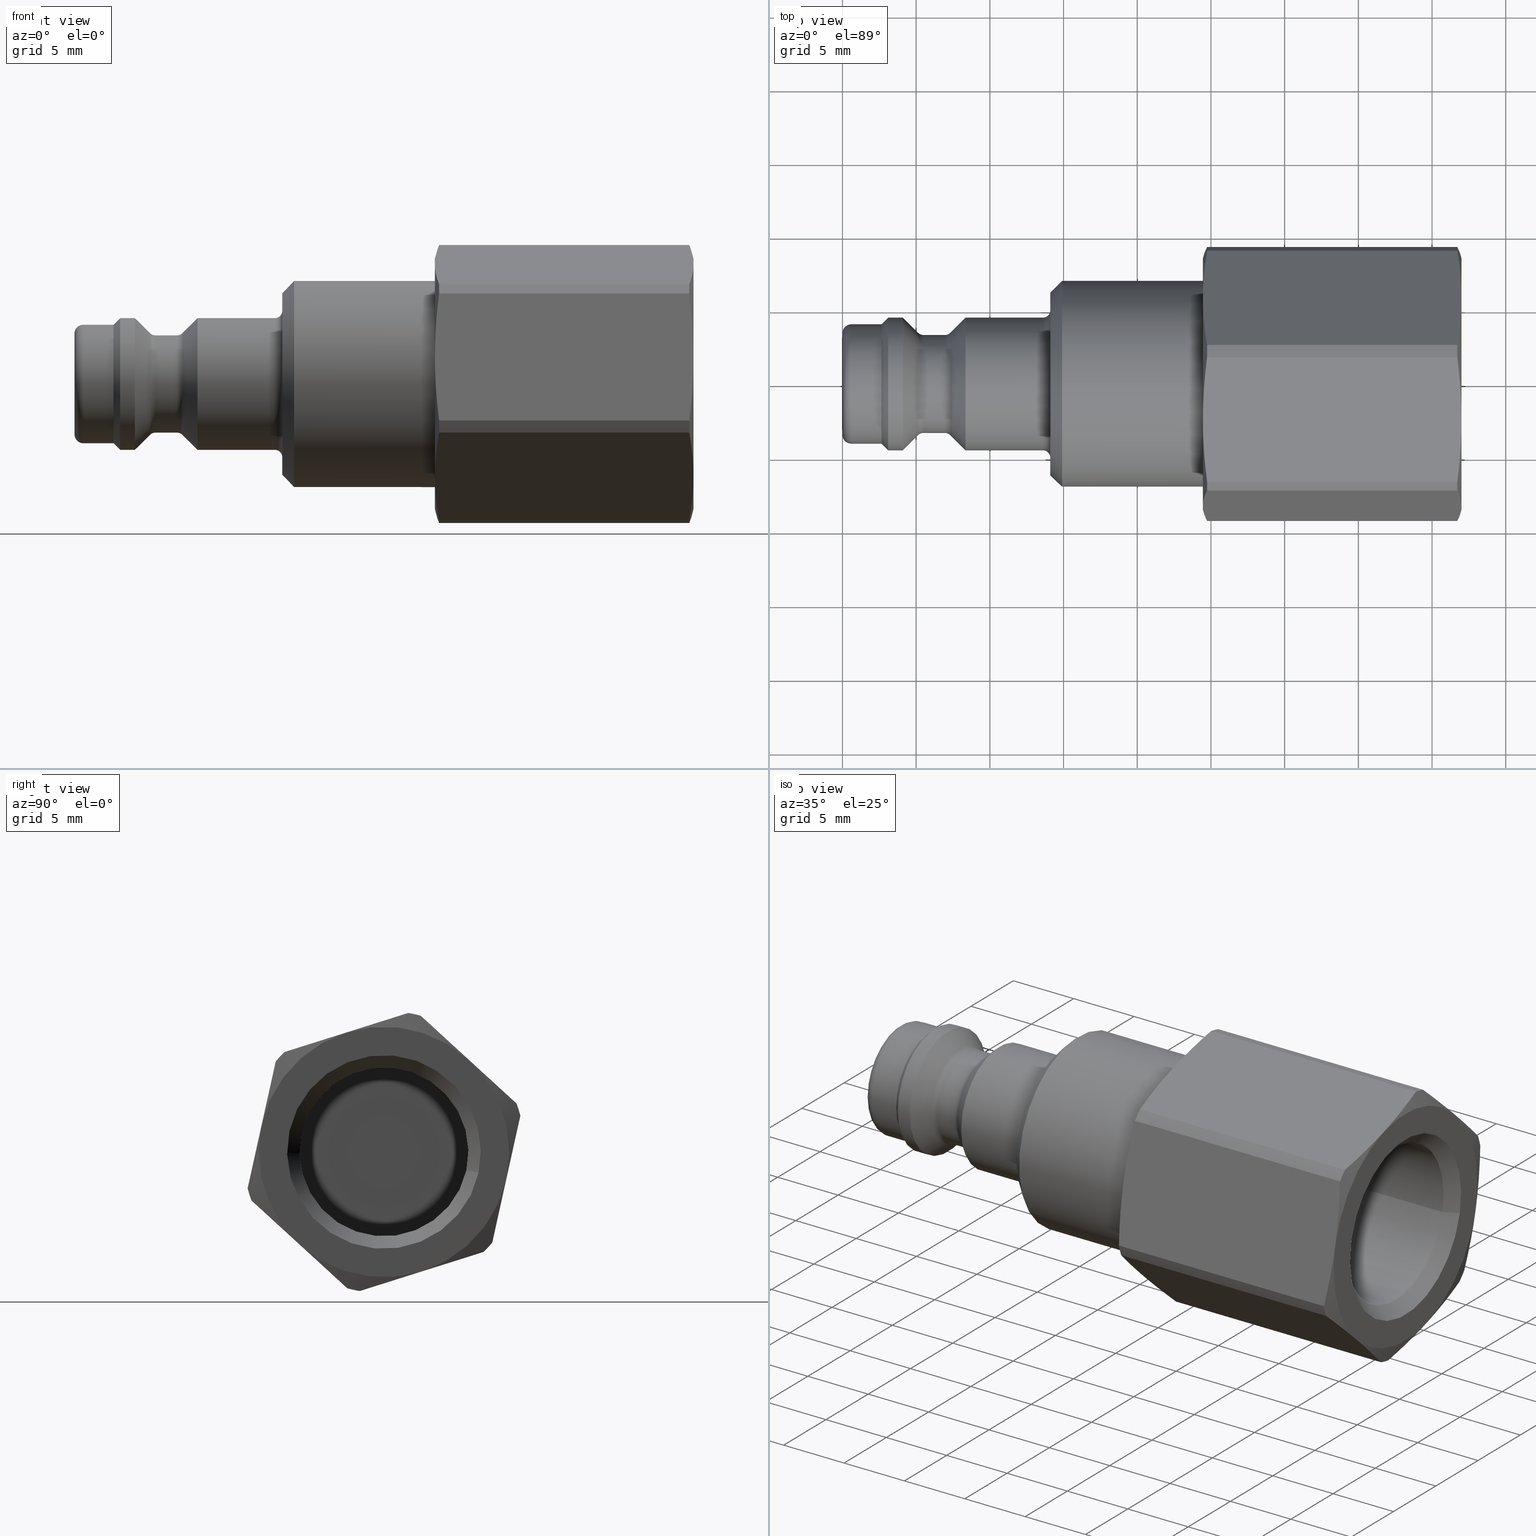
[diagram: canonical four-view strip — front | top / right | iso, engineering-drawing reading convention]
A machine part, canonical four-view strip (front | top / right | iso — engineering-drawing reading convention). The complete STEP part file that produces these views, byte-faithful:
ISO-10303-21;
HEADER;
/****************************************************************
 * Generated by software with PDElib inside                    *
 * PDElib Version v51a, created Wed 11/30/2011                  *
 * ITI Transcendata (http://www.transcendata.com/)              *
 ****************************************************************/
FILE_DESCRIPTION((''),'2;1');
FILE_NAME('J:\\3D Zeichnungen_step\\Serie 21\\21sbiw13mpx.stp','2013-06-27T11:26:07',('IA176480'),(''),'Autodesk Inventor 2013','Autodesk Inventor 2013','');
FILE_SCHEMA(('AUTOMOTIVE_DESIGN { 1 0 10303 214 1 1 1 1 }'));
ENDSEC;
DATA;
#5=APPLICATION_CONTEXT('automotive design');
#6=APPLICATION_PROTOCOL_DEFINITION('International Standard','automotive_design',2001,#5);
#7=PRODUCT_CONTEXT('',#5,'mechanical');
#8=PRODUCT('D107129','D107129',$,(#7));
#9=PRODUCT_RELATED_PRODUCT_CATEGORY('part',$,(#8));
#10=PRODUCT_DEFINITION_FORMATION('',$,#8);
#11=PRODUCT_DEFINITION_CONTEXT('part definition',#5,'design');
#12=PRODUCT_DEFINITION('',$,#10,#11);
#18=(NAMED_UNIT(*)PLANE_ANGLE_UNIT()SI_UNIT($,.RADIAN.));
#19=DIMENSIONAL_EXPONENTS(0.0,0.0,0.0,0.0,0.0,0.0,0.0);
#20=PLANE_ANGLE_MEASURE_WITH_UNIT(PLANE_ANGLE_MEASURE(0.0174532925),#18);
#24=(CONVERSION_BASED_UNIT('DEGREE',#20)NAMED_UNIT(#19)PLANE_ANGLE_UNIT());
#28=(NAMED_UNIT(*)SI_UNIT($,.STERADIAN.)SOLID_ANGLE_UNIT());
#32=(LENGTH_UNIT()NAMED_UNIT(*)SI_UNIT(.MILLI.,.METRE.));
#34=UNCERTAINTY_MEASURE_WITH_UNIT(LENGTH_MEASURE(0.01),#32,'DISTANCE_ACCURACY_VALUE','');
#36=(GEOMETRIC_REPRESENTATION_CONTEXT(3)GLOBAL_UNCERTAINTY_ASSIGNED_CONTEXT((#34))GLOBAL_UNIT_ASSIGNED_CONTEXT((#24,#28,#32))REPRESENTATION_CONTEXT('None','None'));
#37=AXIS2_PLACEMENT_3D('',#38,#39,#40);
#38=CARTESIAN_POINT('',(0.0,0.0,0.0));
#39=DIRECTION('',(0.0,0.0,1.0));
#40=DIRECTION('',(1.0,0.0,0.0));
#41=SHAPE_REPRESENTATION('',(#37),#36);
#42=PRODUCT_DEFINITION_SHAPE('','',#12);
#43=SHAPE_DEFINITION_REPRESENTATION(#42,#41);
#49=(NAMED_UNIT(*)PLANE_ANGLE_UNIT()SI_UNIT($,.RADIAN.));
#50=DIMENSIONAL_EXPONENTS(0.0,0.0,0.0,0.0,0.0,0.0,0.0);
#51=PLANE_ANGLE_MEASURE_WITH_UNIT(PLANE_ANGLE_MEASURE(0.0174532925),#49);
#55=(CONVERSION_BASED_UNIT('DEGREE',#51)NAMED_UNIT(#50)PLANE_ANGLE_UNIT());
#59=(NAMED_UNIT(*)SI_UNIT($,.STERADIAN.)SOLID_ANGLE_UNIT());
#63=(LENGTH_UNIT()NAMED_UNIT(*)SI_UNIT(.MILLI.,.METRE.));
#65=UNCERTAINTY_MEASURE_WITH_UNIT(LENGTH_MEASURE(0.000001),#63,'DISTANCE_ACCURACY_VALUE','');
#67=(GEOMETRIC_REPRESENTATION_CONTEXT(3)GLOBAL_UNCERTAINTY_ASSIGNED_CONTEXT((#65))GLOBAL_UNIT_ASSIGNED_CONTEXT((#55,#59,#63))REPRESENTATION_CONTEXT('','3D'));
#68=CARTESIAN_POINT('',(22.353125314983892,5.741100697266219,6.268154655386971));
#69=DIRECTION('',(-5.674378E-035,-0.675423611443084,-0.737429959457291));
#70=DIRECTION('',(1.199656E-034,-0.737429959457291,0.675423611443084));
#71=AXIS2_PLACEMENT_3D('',#68,#69,#70);
#72=PLANE('',#71);
#73=CARTESIAN_POINT('',(41.711954618136559,8.99170542565667,3.290875041416252));
#74=VERTEX_POINT('',#73);
#75=CARTESIAN_POINT('',(42.000000000000014,5.741100697266218,6.268154655386971));
#76=VERTEX_POINT('',#75);
#77=CARTESIAN_POINT('',(41.711954618136559,8.99170542565667,3.290875041416253));
#78=CARTESIAN_POINT('',(42.000000000000014,7.269739158749964,4.86805082585718));
#79=CARTESIAN_POINT('',(42.000000000000014,5.741100697266218,6.268154655386972));
#87=(BOUNDED_CURVE()B_SPLINE_CURVE(2,(#77,#78,#79),.UNSPECIFIED.,.F.,.U.)B_SPLINE_CURVE_WITH_KNOTS((3,3),(0.0,0.441955310884671),.UNSPECIFIED.)CURVE()GEOMETRIC_REPRESENTATION_ITEM()RATIONAL_B_SPLINE_CURVE((1.0,1.031133014754958,1.0))REPRESENTATION_ITEM(''));
#88=EDGE_CURVE('',#74,#76,#87,.T.);
#89=ORIENTED_EDGE('',*,*,#88,.F.);
#90=CARTESIAN_POINT('',(24.738045381863468,8.991705425656674,3.290875041416248));
#91=VERTEX_POINT('',#90);
#92=CARTESIAN_POINT('',(24.738045381863465,8.991705425656672,3.29087504141625));
#93=DIRECTION('',(1.0,0.0,0.0));
#94=VECTOR('',#93,16.973909236273087);
#95=LINE('',#92,#94);
#96=EDGE_CURVE('',#91,#74,#95,.T.);
#97=ORIENTED_EDGE('',*,*,#96,.F.);
#98=CARTESIAN_POINT('',(24.450000000000006,5.741100697266218,6.268154655386971));
#99=VERTEX_POINT('',#98);
#100=CARTESIAN_POINT('',(24.45000000000001,5.741100697266219,6.268154655386971));
#101=CARTESIAN_POINT('',(24.45000000000001,7.269739158749976,4.86805082585717));
#102=CARTESIAN_POINT('',(24.738045381863468,8.991705425656685,3.290875041416239));
#110=(BOUNDED_CURVE()B_SPLINE_CURVE(2,(#100,#101,#102),.UNSPECIFIED.,.F.,.U.)B_SPLINE_CURVE_WITH_KNOTS((3,3),(0.441955310884673,0.883910621769346),.UNSPECIFIED.)CURVE()GEOMETRIC_REPRESENTATION_ITEM()RATIONAL_B_SPLINE_CURVE((1.0,1.031133014754919,1.0))REPRESENTATION_ITEM(''));
#111=EDGE_CURVE('',#99,#91,#110,.T.);
#112=ORIENTED_EDGE('',*,*,#111,.F.);
#113=CARTESIAN_POINT('',(24.738045381863468,2.490495968875763,9.245434269357693));
#114=VERTEX_POINT('',#113);
#115=CARTESIAN_POINT('',(24.738045381863468,2.490495968875753,9.245434269357705));
#116=CARTESIAN_POINT('',(24.450000000000006,4.212462235782462,7.668258484916773));
#117=CARTESIAN_POINT('',(24.45000000000001,5.741100697266219,6.268154655386971));
#125=(BOUNDED_CURVE()B_SPLINE_CURVE(2,(#115,#116,#117),.UNSPECIFIED.,.F.,.U.)B_SPLINE_CURVE_WITH_KNOTS((3,3),(0.0,0.441955310884673),.UNSPECIFIED.)CURVE()GEOMETRIC_REPRESENTATION_ITEM()RATIONAL_B_SPLINE_CURVE((1.0,1.031133014754915,1.0))REPRESENTATION_ITEM(''));
#126=EDGE_CURVE('',#114,#99,#125,.T.);
#127=ORIENTED_EDGE('',*,*,#126,.F.);
#128=CARTESIAN_POINT('',(41.711954618136559,2.490495968875767,9.245434269357689));
#129=VERTEX_POINT('',#128);
#130=CARTESIAN_POINT('',(41.711954618136552,2.490495968875765,9.245434269357691));
#131=DIRECTION('',(-1.0,0.0,0.0));
#132=VECTOR('',#131,16.973909236273087);
#133=LINE('',#130,#132);
#134=EDGE_CURVE('',#129,#114,#133,.T.);
#135=ORIENTED_EDGE('',*,*,#134,.F.);
#136=CARTESIAN_POINT('',(42.000000000000014,5.741100697266218,6.268154655386972));
#137=CARTESIAN_POINT('',(42.000000000000014,4.212462235782474,7.668258484916763));
#138=CARTESIAN_POINT('',(41.711954618136559,2.49049596887577,9.245434269357688));
#146=(BOUNDED_CURVE()B_SPLINE_CURVE(2,(#136,#137,#138),.UNSPECIFIED.,.F.,.U.)B_SPLINE_CURVE_WITH_KNOTS((3,3),(0.441955310884671,0.883910621769341),.UNSPECIFIED.)CURVE()GEOMETRIC_REPRESENTATION_ITEM()RATIONAL_B_SPLINE_CURVE((1.0,1.031133014754954,1.0))REPRESENTATION_ITEM(''));
#147=EDGE_CURVE('',#76,#129,#146,.T.);
#148=ORIENTED_EDGE('',*,*,#147,.F.);
#149=EDGE_LOOP('',(#89,#97,#112,#127,#135,#148));
#150=FACE_OUTER_BOUND('',#149,.T.);
#151=ADVANCED_FACE('',(#150),#72,.F.);
#152=CARTESIAN_POINT('',(22.353125314983892,-2.557830817781698,8.106016377210587));
#153=DIRECTION('',(-2.155763E-034,0.3009212726802,-0.953648985554186));
#154=DIRECTION('',(1.551403E-034,-0.953648985554186,-0.3009212726802));
#155=AXIS2_PLACEMENT_3D('',#152,#153,#154);
#156=PLANE('',#155);
#157=CARTESIAN_POINT('',(41.711954618136559,1.645871326281698,9.432482842673171));
#158=VERTEX_POINT('',#157);
#159=CARTESIAN_POINT('',(42.000000000000014,-2.557830817781698,8.106016377210587));
#160=VERTEX_POINT('',#159);
#161=CARTESIAN_POINT('',(41.711954618136559,1.6458713262817,9.432482842673171));
#162=CARTESIAN_POINT('',(42.000000000000014,-0.580986102731156,8.72980420329257));
#163=CARTESIAN_POINT('',(42.000000000000014,-2.557830817781698,8.106016377210587));
#171=(BOUNDED_CURVE()B_SPLINE_CURVE(2,(#161,#162,#163),.UNSPECIFIED.,.F.,.U.)B_SPLINE_CURVE_WITH_KNOTS((3,3),(0.0,0.441955310884671),.UNSPECIFIED.)CURVE()GEOMETRIC_REPRESENTATION_ITEM()RATIONAL_B_SPLINE_CURVE((1.0,1.031133014754949,1.0))REPRESENTATION_ITEM(''));
#172=EDGE_CURVE('',#158,#160,#171,.T.);
#173=ORIENTED_EDGE('',*,*,#172,.F.);
#174=CARTESIAN_POINT('',(24.738045381863468,1.645871326281703,9.432482842673172));
#175=VERTEX_POINT('',#174);
#176=CARTESIAN_POINT('',(24.738045381863465,1.6458713262817,9.432482842673171));
#177=DIRECTION('',(1.0,0.0,0.0));
#178=VECTOR('',#177,16.973909236273087);
#179=LINE('',#176,#178);
#180=EDGE_CURVE('',#175,#158,#179,.T.);
#181=ORIENTED_EDGE('',*,*,#180,.F.);
#182=CARTESIAN_POINT('',(24.450000000000006,-2.557830817781698,8.106016377210587));
#183=VERTEX_POINT('',#182);
#184=CARTESIAN_POINT('',(24.45000000000001,-2.557830817781698,8.106016377210587));
#185=CARTESIAN_POINT('',(24.45000000000001,-0.580986102731131,8.729804203292579));
#186=CARTESIAN_POINT('',(24.738045381863468,1.64587132628172,9.432482842673178));
#194=(BOUNDED_CURVE()B_SPLINE_CURVE(2,(#184,#185,#186),.UNSPECIFIED.,.F.,.U.)B_SPLINE_CURVE_WITH_KNOTS((3,3),(0.441955310884673,0.883910621769346),.UNSPECIFIED.)CURVE()GEOMETRIC_REPRESENTATION_ITEM()RATIONAL_B_SPLINE_CURVE((1.0,1.031133014754913,1.0))REPRESENTATION_ITEM(''));
#195=EDGE_CURVE('',#183,#175,#194,.T.);
#196=ORIENTED_EDGE('',*,*,#195,.F.);
#197=CARTESIAN_POINT('',(24.738045381863468,-6.761532961845099,6.779549911747998));
#198=VERTEX_POINT('',#197);
#199=CARTESIAN_POINT('',(24.738045381863468,-6.761532961845116,6.779549911747996));
#200=CARTESIAN_POINT('',(24.450000000000006,-4.534675532832265,7.482228551128594));
#201=CARTESIAN_POINT('',(24.45000000000001,-2.557830817781698,8.106016377210587));
#209=(BOUNDED_CURVE()B_SPLINE_CURVE(2,(#199,#200,#201),.UNSPECIFIED.,.F.,.U.)B_SPLINE_CURVE_WITH_KNOTS((3,3),(0.0,0.441955310884673),.UNSPECIFIED.)CURVE()GEOMETRIC_REPRESENTATION_ITEM()RATIONAL_B_SPLINE_CURVE((1.0,1.031133014754893,1.0))REPRESENTATION_ITEM(''));
#210=EDGE_CURVE('',#198,#183,#209,.T.);
#211=ORIENTED_EDGE('',*,*,#210,.F.);
#212=CARTESIAN_POINT('',(41.711954618136559,-6.761532961845093,6.779549911747999));
#213=VERTEX_POINT('',#212);
#214=CARTESIAN_POINT('',(41.711954618136552,-6.761532961845097,6.779549911747999));
#215=DIRECTION('',(-1.0,0.0,0.0));
#216=VECTOR('',#215,16.973909236273087);
#217=LINE('',#214,#216);
#218=EDGE_CURVE('',#213,#198,#217,.T.);
#219=ORIENTED_EDGE('',*,*,#218,.F.);
#220=CARTESIAN_POINT('',(42.000000000000014,-2.557830817781698,8.106016377210587));
#221=CARTESIAN_POINT('',(42.000000000000014,-4.534675532832237,7.482228551128602));
#222=CARTESIAN_POINT('',(41.711954618136559,-6.761532961845097,6.779549911747999));
#230=(BOUNDED_CURVE()B_SPLINE_CURVE(2,(#220,#221,#222),.UNSPECIFIED.,.F.,.U.)B_SPLINE_CURVE_WITH_KNOTS((3,3),(0.441955310884671,0.883910621769342),.UNSPECIFIED.)CURVE()GEOMETRIC_REPRESENTATION_ITEM()RATIONAL_B_SPLINE_CURVE((1.0,1.031133014754947,1.0))REPRESENTATION_ITEM(''));
#231=EDGE_CURVE('',#160,#213,#230,.T.);
#232=ORIENTED_EDGE('',*,*,#231,.F.);
#233=EDGE_LOOP('',(#173,#181,#196,#211,#219,#232));
#234=FACE_OUTER_BOUND('',#233,.T.);
#235=ADVANCED_FACE('',(#234),#156,.F.);
#236=CARTESIAN_POINT('',(22.353125314983892,-8.298931515047919,1.83786172182362));
#237=DIRECTION('',(-3.254546E-034,0.976344884123284,-0.216219026096896));
#238=DIRECTION('',(3.517466E-035,-0.216219026096896,-0.976344884123284));
#239=AXIS2_PLACEMENT_3D('',#236,#237,#238);
#240=PLANE('',#239);
#241=CARTESIAN_POINT('',(41.711954618136559,-7.345834099374971,6.141607801256925));
#242=VERTEX_POINT('',#241);
#243=CARTESIAN_POINT('',(42.000000000000014,-8.298931515047919,1.83786172182362));
#244=VERTEX_POINT('',#243);
#245=CARTESIAN_POINT('',(41.711954618136559,-7.34583409937497,6.141607801256928));
#246=CARTESIAN_POINT('',(42.000000000000014,-7.850725261481108,3.861753377435417));
#247=CARTESIAN_POINT('',(42.000000000000014,-8.298931515047919,1.83786172182362));
#255=(BOUNDED_CURVE()B_SPLINE_CURVE(2,(#245,#246,#247),.UNSPECIFIED.,.F.,.U.)B_SPLINE_CURVE_WITH_KNOTS((3,3),(0.0,0.441955310884671),.UNSPECIFIED.)CURVE()GEOMETRIC_REPRESENTATION_ITEM()RATIONAL_B_SPLINE_CURVE((1.0,1.031133014754963,1.0))REPRESENTATION_ITEM(''));
#256=EDGE_CURVE('',#242,#244,#255,.T.);
#257=ORIENTED_EDGE('',*,*,#256,.F.);
#258=CARTESIAN_POINT('',(24.738045381863468,-7.34583409937497,6.14160780125693));
#259=VERTEX_POINT('',#258);
#260=CARTESIAN_POINT('',(24.738045381863465,-7.345834099374971,6.141607801256926));
#261=DIRECTION('',(1.0,0.0,0.0));
#262=VECTOR('',#261,16.973909236273087);
#263=LINE('',#260,#262);
#264=EDGE_CURVE('',#259,#242,#263,.T.);
#265=ORIENTED_EDGE('',*,*,#264,.F.);
#266=CARTESIAN_POINT('',(24.450000000000006,-8.298931515047919,1.83786172182362));
#267=VERTEX_POINT('',#266);
#268=CARTESIAN_POINT('',(24.45000000000001,-8.298931515047919,1.83786172182362));
#269=CARTESIAN_POINT('',(24.45000000000001,-7.850725261481113,3.861753377435397));
#270=CARTESIAN_POINT('',(24.738045381863468,-7.345834099374966,6.141607801256948));
#278=(BOUNDED_CURVE()B_SPLINE_CURVE(2,(#268,#269,#270),.UNSPECIFIED.,.F.,.U.)B_SPLINE_CURVE_WITH_KNOTS((3,3),(0.441955310884673,0.883910621769347),.UNSPECIFIED.)CURVE()GEOMETRIC_REPRESENTATION_ITEM()RATIONAL_B_SPLINE_CURVE((1.0,1.031133014754948,1.0))REPRESENTATION_ITEM(''));
#279=EDGE_CURVE('',#267,#259,#278,.T.);
#280=ORIENTED_EDGE('',*,*,#279,.F.);
#281=CARTESIAN_POINT('',(24.738045381863468,-9.252028930720865,-2.46588435760969));
#282=VERTEX_POINT('',#281);
#283=CARTESIAN_POINT('',(24.738045381863468,-9.25202893072087,-2.465884357609708));
#284=CARTESIAN_POINT('',(24.450000000000006,-8.747137768614724,-0.186029933788158));
#285=CARTESIAN_POINT('',(24.45000000000001,-8.298931515047919,1.83786172182362));
#293=(BOUNDED_CURVE()B_SPLINE_CURVE(2,(#283,#284,#285),.UNSPECIFIED.,.F.,.U.)B_SPLINE_CURVE_WITH_KNOTS((3,3),(0.0,0.441955310884673),.UNSPECIFIED.)CURVE()GEOMETRIC_REPRESENTATION_ITEM()RATIONAL_B_SPLINE_CURVE((1.0,1.031133014754913,1.0))REPRESENTATION_ITEM(''));
#294=EDGE_CURVE('',#282,#267,#293,.T.);
#295=ORIENTED_EDGE('',*,*,#294,.F.);
#296=CARTESIAN_POINT('',(41.711954618136559,-9.252028930720865,-2.465884357609685));
#297=VERTEX_POINT('',#296);
#298=CARTESIAN_POINT('',(41.711954618136552,-9.252028930720865,-2.465884357609687));
#299=DIRECTION('',(-1.0,0.0,0.0));
#300=VECTOR('',#299,16.973909236273087);
#301=LINE('',#298,#300);
#302=EDGE_CURVE('',#297,#282,#301,.T.);
#303=ORIENTED_EDGE('',*,*,#302,.F.);
#304=CARTESIAN_POINT('',(42.000000000000014,-8.298931515047919,1.83786172182362));
#305=CARTESIAN_POINT('',(42.000000000000014,-8.747137768614728,-0.186029933788175));
#306=CARTESIAN_POINT('',(41.711954618136559,-9.252028930720865,-2.465884357609688));
#314=(BOUNDED_CURVE()B_SPLINE_CURVE(2,(#304,#305,#306),.UNSPECIFIED.,.F.,.U.)B_SPLINE_CURVE_WITH_KNOTS((3,3),(0.441955310884671,0.883910621769342),.UNSPECIFIED.)CURVE()GEOMETRIC_REPRESENTATION_ITEM()RATIONAL_B_SPLINE_CURVE((1.0,1.031133014754946,1.0))REPRESENTATION_ITEM(''));
#315=EDGE_CURVE('',#244,#297,#314,.T.);
#316=ORIENTED_EDGE('',*,*,#315,.F.);
#317=EDGE_LOOP('',(#257,#265,#280,#295,#303,#316));
#318=FACE_OUTER_BOUND('',#317,.T.);
#319=ADVANCED_FACE('',(#318),#240,.F.);
#320=CARTESIAN_POINT('',(22.353125314983892,-5.741100697266223,-6.268154655386969));
#321=DIRECTION('',(-2.765006E-034,0.675423611443085,0.73742995945729));
#322=DIRECTION('',(-1.199656E-034,0.73742995945729,-0.675423611443085));
#323=AXIS2_PLACEMENT_3D('',#320,#321,#322);
#324=PLANE('',#323);
#325=CARTESIAN_POINT('',(41.711954618136559,-8.991705425656672,-3.290875041416246));
#326=VERTEX_POINT('',#325);
#327=CARTESIAN_POINT('',(42.000000000000014,-5.741100697266223,-6.268154655386969));
#328=VERTEX_POINT('',#327);
#329=CARTESIAN_POINT('',(41.711954618136559,-8.991705425656667,-3.290875041416252));
#330=CARTESIAN_POINT('',(42.000000000000014,-7.269739158749967,-4.868050825857174));
#331=CARTESIAN_POINT('',(42.000000000000014,-5.741100697266223,-6.268154655386969));
#339=(BOUNDED_CURVE()B_SPLINE_CURVE(2,(#329,#330,#331),.UNSPECIFIED.,.F.,.U.)B_SPLINE_CURVE_WITH_KNOTS((3,3),(0.0,0.44195531088467),.UNSPECIFIED.)CURVE()GEOMETRIC_REPRESENTATION_ITEM()RATIONAL_B_SPLINE_CURVE((1.0,1.031133014754951,1.0))REPRESENTATION_ITEM(''));
#340=EDGE_CURVE('',#326,#328,#339,.T.);
#341=ORIENTED_EDGE('',*,*,#340,.F.);
#342=CARTESIAN_POINT('',(24.738045381863468,-8.991705425656676,-3.290875041416243));
#343=VERTEX_POINT('',#342);
#344=CARTESIAN_POINT('',(24.738045381863465,-8.991705425656674,-3.290875041416244));
#345=DIRECTION('',(1.0,0.0,0.0));
#346=VECTOR('',#345,16.973909236273087);
#347=LINE('',#344,#346);
#348=EDGE_CURVE('',#343,#326,#347,.T.);
#349=ORIENTED_EDGE('',*,*,#348,.F.);
#350=CARTESIAN_POINT('',(24.450000000000006,-5.741100697266223,-6.268154655386969));
#351=VERTEX_POINT('',#350);
#352=CARTESIAN_POINT('',(24.45000000000001,-5.741100697266223,-6.268154655386969));
#353=CARTESIAN_POINT('',(24.45000000000001,-7.269739158749981,-4.868050825857163));
#354=CARTESIAN_POINT('',(24.738045381863468,-8.991705425656688,-3.290875041416232));
#362=(BOUNDED_CURVE()B_SPLINE_CURVE(2,(#352,#353,#354),.UNSPECIFIED.,.F.,.U.)B_SPLINE_CURVE_WITH_KNOTS((3,3),(0.441955310884673,0.883910621769346),.UNSPECIFIED.)CURVE()GEOMETRIC_REPRESENTATION_ITEM()RATIONAL_B_SPLINE_CURVE((1.0,1.031133014754893,1.0))REPRESENTATION_ITEM(''));
#363=EDGE_CURVE('',#351,#343,#362,.T.);
#364=ORIENTED_EDGE('',*,*,#363,.F.);
#365=CARTESIAN_POINT('',(24.738045381863468,-2.490495968875769,-9.245434269357691));
#366=VERTEX_POINT('',#365);
#367=CARTESIAN_POINT('',(24.738045381863468,-2.490495968875756,-9.245434269357704));
#368=CARTESIAN_POINT('',(24.450000000000006,-4.212462235782465,-7.668258484916771));
#369=CARTESIAN_POINT('',(24.45000000000001,-5.741100697266223,-6.268154655386969));
#377=(BOUNDED_CURVE()B_SPLINE_CURVE(2,(#367,#368,#369),.UNSPECIFIED.,.F.,.U.)B_SPLINE_CURVE_WITH_KNOTS((3,3),(0.0,0.441955310884673),.UNSPECIFIED.)CURVE()GEOMETRIC_REPRESENTATION_ITEM()RATIONAL_B_SPLINE_CURVE((1.0,1.031133014754906,1.0))REPRESENTATION_ITEM(''));
#378=EDGE_CURVE('',#366,#351,#377,.T.);
#379=ORIENTED_EDGE('',*,*,#378,.F.);
#380=CARTESIAN_POINT('',(41.711954618136559,-2.490495968875773,-9.245434269357688));
#381=VERTEX_POINT('',#380);
#382=CARTESIAN_POINT('',(41.711954618136552,-2.490495968875771,-9.245434269357689));
#383=DIRECTION('',(-1.0,0.0,0.0));
#384=VECTOR('',#383,16.973909236273087);
#385=LINE('',#382,#384);
#386=EDGE_CURVE('',#381,#366,#385,.T.);
#387=ORIENTED_EDGE('',*,*,#386,.F.);
#388=CARTESIAN_POINT('',(42.000000000000014,-5.741100697266223,-6.268154655386969));
#389=CARTESIAN_POINT('',(42.000000000000014,-4.212462235782477,-7.668258484916763));
#390=CARTESIAN_POINT('',(41.711954618136559,-2.490495968875779,-9.245434269357682));
#398=(BOUNDED_CURVE()B_SPLINE_CURVE(2,(#388,#389,#390),.UNSPECIFIED.,.F.,.U.)B_SPLINE_CURVE_WITH_KNOTS((3,3),(0.44195531088467,0.88391062176934),.UNSPECIFIED.)CURVE()GEOMETRIC_REPRESENTATION_ITEM()RATIONAL_B_SPLINE_CURVE((1.0,1.03113301475495,1.0))REPRESENTATION_ITEM(''));
#399=EDGE_CURVE('',#328,#381,#398,.T.);
#400=ORIENTED_EDGE('',*,*,#399,.F.);
#401=EDGE_LOOP('',(#341,#349,#364,#379,#387,#400));
#402=FACE_OUTER_BOUND('',#401,.T.);
#403=ADVANCED_FACE('',(#402),#324,.F.);
#404=CARTESIAN_POINT('',(22.353125314983892,2.557830817781696,-8.106016377210587));
#405=DIRECTION('',(-1.176681E-034,-0.300921272680199,0.953648985554187));
#406=DIRECTION('',(-1.551403E-034,0.953648985554187,0.300921272680199));
#407=AXIS2_PLACEMENT_3D('',#404,#405,#406);
#408=PLANE('',#407);
#409=CARTESIAN_POINT('',(41.711954618136559,-1.645871326281702,-9.432482842673171));
#410=VERTEX_POINT('',#409);
#411=CARTESIAN_POINT('',(42.000000000000014,2.557830817781694,-8.106016377210587));
#412=VERTEX_POINT('',#411);
#413=CARTESIAN_POINT('',(41.711954618136559,-1.645871326281702,-9.432482842673171));
#414=CARTESIAN_POINT('',(42.000000000000014,0.580986102731156,-8.72980420329257));
#415=CARTESIAN_POINT('',(42.000000000000014,2.557830817781696,-8.106016377210587));
#423=(BOUNDED_CURVE()B_SPLINE_CURVE(2,(#413,#414,#415),.UNSPECIFIED.,.F.,.U.)B_SPLINE_CURVE_WITH_KNOTS((3,3),(0.0,0.441955310884671),.UNSPECIFIED.)CURVE()GEOMETRIC_REPRESENTATION_ITEM()RATIONAL_B_SPLINE_CURVE((1.0,1.031133014754954,1.0))REPRESENTATION_ITEM(''));
#424=EDGE_CURVE('',#410,#412,#423,.T.);
#425=ORIENTED_EDGE('',*,*,#424,.F.);
#426=CARTESIAN_POINT('',(24.738045381863468,-1.645871326281706,-9.432482842673171));
#427=VERTEX_POINT('',#426);
#428=CARTESIAN_POINT('',(24.738045381863465,-1.645871326281704,-9.432482842673171));
#429=DIRECTION('',(1.0,0.0,0.0));
#430=VECTOR('',#429,16.973909236273087);
#431=LINE('',#428,#430);
#432=EDGE_CURVE('',#427,#410,#431,.T.);
#433=ORIENTED_EDGE('',*,*,#432,.F.);
#434=CARTESIAN_POINT('',(24.450000000000006,2.557830817781694,-8.106016377210587));
#435=VERTEX_POINT('',#434);
#436=CARTESIAN_POINT('',(24.45000000000001,2.557830817781696,-8.106016377210587));
#437=CARTESIAN_POINT('',(24.45000000000001,0.580986102731136,-8.729804203292575));
#438=CARTESIAN_POINT('',(24.738045381863468,-1.645871326281723,-9.432482842673176));
#446=(BOUNDED_CURVE()B_SPLINE_CURVE(2,(#436,#437,#438),.UNSPECIFIED.,.F.,.U.)B_SPLINE_CURVE_WITH_KNOTS((3,3),(0.441955310884673,0.883910621769346),.UNSPECIFIED.)CURVE()GEOMETRIC_REPRESENTATION_ITEM()RATIONAL_B_SPLINE_CURVE((1.0,1.031133014754904,1.0))REPRESENTATION_ITEM(''));
#447=EDGE_CURVE('',#435,#427,#446,.T.);
#448=ORIENTED_EDGE('',*,*,#447,.F.);
#449=CARTESIAN_POINT('',(24.738045381863468,6.761532961845096,-6.779549911748001));
#450=VERTEX_POINT('',#449);
#451=CARTESIAN_POINT('',(24.738045381863468,6.761532961845114,-6.779549911747997));
#452=CARTESIAN_POINT('',(24.450000000000006,4.534675532832255,-7.482228551128598));
#453=CARTESIAN_POINT('',(24.45000000000001,2.557830817781696,-8.106016377210587));
#461=(BOUNDED_CURVE()B_SPLINE_CURVE(2,(#451,#452,#453),.UNSPECIFIED.,.F.,.U.)B_SPLINE_CURVE_WITH_KNOTS((3,3),(0.0,0.441955310884673),.UNSPECIFIED.)CURVE()GEOMETRIC_REPRESENTATION_ITEM()RATIONAL_B_SPLINE_CURVE((1.0,1.031133014754907,1.0))REPRESENTATION_ITEM(''));
#462=EDGE_CURVE('',#450,#435,#461,.T.);
#463=ORIENTED_EDGE('',*,*,#462,.F.);
#464=CARTESIAN_POINT('',(41.711954618136559,6.761532961845091,-6.779549911748002));
#465=VERTEX_POINT('',#464);
#466=CARTESIAN_POINT('',(41.711954618136552,6.761532961845093,-6.779549911748002));
#467=DIRECTION('',(-1.0,0.0,0.0));
#468=VECTOR('',#467,16.973909236273087);
#469=LINE('',#466,#468);
#470=EDGE_CURVE('',#465,#450,#469,.T.);
#471=ORIENTED_EDGE('',*,*,#470,.F.);
#472=CARTESIAN_POINT('',(42.000000000000014,2.557830817781696,-8.106016377210587));
#473=CARTESIAN_POINT('',(42.000000000000014,4.534675532832234,-7.482228551128603));
#474=CARTESIAN_POINT('',(41.711954618136559,6.761532961845091,-6.779549911748002));
#482=(BOUNDED_CURVE()B_SPLINE_CURVE(2,(#472,#473,#474),.UNSPECIFIED.,.F.,.U.)B_SPLINE_CURVE_WITH_KNOTS((3,3),(0.441955310884671,0.883910621769342),.UNSPECIFIED.)CURVE()GEOMETRIC_REPRESENTATION_ITEM()RATIONAL_B_SPLINE_CURVE((1.0,1.031133014754957,1.0))REPRESENTATION_ITEM(''));
#483=EDGE_CURVE('',#412,#465,#482,.T.);
#484=ORIENTED_EDGE('',*,*,#483,.F.);
#485=EDGE_LOOP('',(#425,#433,#448,#463,#471,#484));
#486=FACE_OUTER_BOUND('',#485,.T.);
#487=ADVANCED_FACE('',(#486),#408,.F.);
#488=CARTESIAN_POINT('',(24.594022690931737,-2.831617E-033,0.0));
#489=DIRECTION('',(1.0,1.626807E-034,0.0));
#490=DIRECTION('',(-1.588325E-034,0.976344884123284,-0.216219026096897));
#491=AXIS2_PLACEMENT_3D('',#488,#489,#490);
#492=CONICAL_SURFACE('',#491,9.037500000000001,75.000000000000014);
#493=ORIENTED_EDGE('',*,*,#462,.T.);
#494=CARTESIAN_POINT('',(24.45000000000001,8.298931515047919,-1.837861721823621));
#495=VERTEX_POINT('',#494);
#496=CARTESIAN_POINT('',(24.45000000000001,-2.855046E-033,1.069106E-049));
#497=DIRECTION('',(-1.0,-1.550753E-034,3.434260E-035));
#498=DIRECTION('',(-1.588325E-034,0.976344884123284,-0.216219026096897));
#499=AXIS2_PLACEMENT_3D('',#496,#497,#498);
#500=CIRCLE('',#499,8.500000000000002);
#501=EDGE_CURVE('',#495,#435,#500,.T.);
#502=ORIENTED_EDGE('',*,*,#501,.F.);
#503=CARTESIAN_POINT('',(24.738045381863468,7.34583409937497,-6.141607801256931));
#504=VERTEX_POINT('',#503);
#505=CARTESIAN_POINT('',(24.45000000000001,8.298931515047919,-1.837861721823621));
#506=CARTESIAN_POINT('',(24.45000000000001,7.850725261481111,-3.861753377435408));
#507=CARTESIAN_POINT('',(24.738045381863465,7.34583409937497,-6.141607801256932));
#515=(BOUNDED_CURVE()B_SPLINE_CURVE(2,(#505,#506,#507),.UNSPECIFIED.,.F.,.U.)B_SPLINE_CURVE_WITH_KNOTS((3,3),(0.441955310884672,0.883910621769343),.UNSPECIFIED.)CURVE()GEOMETRIC_REPRESENTATION_ITEM()RATIONAL_B_SPLINE_CURVE((1.0,1.031133014754912,1.0))REPRESENTATION_ITEM(''));
#516=EDGE_CURVE('',#495,#504,#515,.T.);
#517=ORIENTED_EDGE('',*,*,#516,.T.);
#518=CARTESIAN_POINT('',(24.738045381863465,-2.808187E-033,0.0));
#519=DIRECTION('',(-1.0,-1.550753E-034,3.434260E-035));
#520=DIRECTION('',(-1.588325E-034,0.976344884123284,-0.216219026096897));
#521=AXIS2_PLACEMENT_3D('',#518,#519,#520);
#522=CIRCLE('',#521,9.575000000000003);
#523=EDGE_CURVE('',#504,#450,#522,.T.);
#524=ORIENTED_EDGE('',*,*,#523,.T.);
#525=EDGE_LOOP('',(#493,#502,#517,#524));
#526=FACE_OUTER_BOUND('',#525,.T.);
#527=ADVANCED_FACE('',(#526),#492,.T.);
#528=CARTESIAN_POINT('',(24.594022690931737,-2.831617E-033,0.0));
#529=DIRECTION('',(1.0,1.626807E-034,0.0));
#530=DIRECTION('',(-1.588325E-034,0.976344884123284,-0.216219026096897));
#531=AXIS2_PLACEMENT_3D('',#528,#529,#530);
#532=CONICAL_SURFACE('',#531,9.037500000000001,75.000000000000014);
#533=ORIENTED_EDGE('',*,*,#378,.T.);
#534=CARTESIAN_POINT('',(24.45000000000001,-2.855046E-033,1.069106E-049));
#535=DIRECTION('',(-1.0,-1.550753E-034,3.434260E-035));
#536=DIRECTION('',(-1.588325E-034,0.976344884123284,-0.216219026096897));
#537=AXIS2_PLACEMENT_3D('',#534,#535,#536);
#538=CIRCLE('',#537,8.500000000000002);
#539=EDGE_CURVE('',#435,#351,#538,.T.);
#540=ORIENTED_EDGE('',*,*,#539,.F.);
#541=ORIENTED_EDGE('',*,*,#447,.T.);
#542=CARTESIAN_POINT('',(24.738045381863465,-2.808187E-033,0.0));
#543=DIRECTION('',(-1.0,-1.550753E-034,3.434260E-035));
#544=DIRECTION('',(-1.588325E-034,0.976344884123284,-0.216219026096897));
#545=AXIS2_PLACEMENT_3D('',#542,#543,#544);
#546=CIRCLE('',#545,9.575000000000003);
#547=EDGE_CURVE('',#427,#366,#546,.T.);
#548=ORIENTED_EDGE('',*,*,#547,.T.);
#549=EDGE_LOOP('',(#533,#540,#541,#548));
#550=FACE_OUTER_BOUND('',#549,.T.);
#551=ADVANCED_FACE('',(#550),#532,.T.);
#552=CARTESIAN_POINT('',(24.594022690931737,-2.831617E-033,0.0));
#553=DIRECTION('',(1.0,1.626807E-034,0.0));
#554=DIRECTION('',(-1.588325E-034,0.976344884123284,-0.216219026096897));
#555=AXIS2_PLACEMENT_3D('',#552,#553,#554);
#556=CONICAL_SURFACE('',#555,9.037500000000001,75.000000000000014);
#557=ORIENTED_EDGE('',*,*,#294,.T.);
#558=CARTESIAN_POINT('',(24.45000000000001,-2.855046E-033,1.069106E-049));
#559=DIRECTION('',(-1.0,-1.550753E-034,3.434260E-035));
#560=DIRECTION('',(-1.588325E-034,0.976344884123284,-0.216219026096897));
#561=AXIS2_PLACEMENT_3D('',#558,#559,#560);
#562=CIRCLE('',#561,8.500000000000002);
#563=EDGE_CURVE('',#351,#267,#562,.T.);
#564=ORIENTED_EDGE('',*,*,#563,.F.);
#565=ORIENTED_EDGE('',*,*,#363,.T.);
#566=CARTESIAN_POINT('',(24.738045381863465,-2.808187E-033,0.0));
#567=DIRECTION('',(-1.0,-1.550753E-034,3.434260E-035));
#568=DIRECTION('',(-1.588325E-034,0.976344884123284,-0.216219026096897));
#569=AXIS2_PLACEMENT_3D('',#566,#567,#568);
#570=CIRCLE('',#569,9.575000000000003);
#571=EDGE_CURVE('',#343,#282,#570,.T.);
#572=ORIENTED_EDGE('',*,*,#571,.T.);
#573=EDGE_LOOP('',(#557,#564,#565,#572));
#574=FACE_OUTER_BOUND('',#573,.T.);
#575=ADVANCED_FACE('',(#574),#556,.T.);
#576=CARTESIAN_POINT('',(24.594022690931737,-2.831617E-033,0.0));
#577=DIRECTION('',(1.0,1.626807E-034,0.0));
#578=DIRECTION('',(-1.588325E-034,0.976344884123284,-0.216219026096897));
#579=AXIS2_PLACEMENT_3D('',#576,#577,#578);
#580=CONICAL_SURFACE('',#579,9.037500000000001,75.000000000000014);
#581=ORIENTED_EDGE('',*,*,#210,.T.);
#582=CARTESIAN_POINT('',(24.45000000000001,-2.855046E-033,1.069106E-049));
#583=DIRECTION('',(-1.0,-1.550753E-034,3.434260E-035));
#584=DIRECTION('',(-1.588325E-034,0.976344884123284,-0.216219026096897));
#585=AXIS2_PLACEMENT_3D('',#582,#583,#584);
#586=CIRCLE('',#585,8.500000000000002);
#587=EDGE_CURVE('',#267,#183,#586,.T.);
#588=ORIENTED_EDGE('',*,*,#587,.F.);
#589=ORIENTED_EDGE('',*,*,#279,.T.);
#590=CARTESIAN_POINT('',(24.738045381863465,-2.808187E-033,0.0));
#591=DIRECTION('',(-1.0,-1.550753E-034,3.434260E-035));
#592=DIRECTION('',(-1.588325E-034,0.976344884123284,-0.216219026096897));
#593=AXIS2_PLACEMENT_3D('',#590,#591,#592);
#594=CIRCLE('',#593,9.575000000000003);
#595=EDGE_CURVE('',#259,#198,#594,.T.);
#596=ORIENTED_EDGE('',*,*,#595,.T.);
#597=EDGE_LOOP('',(#581,#588,#589,#596));
#598=FACE_OUTER_BOUND('',#597,.T.);
#599=ADVANCED_FACE('',(#598),#580,.T.);
#600=CARTESIAN_POINT('',(24.594022690931737,-2.831617E-033,0.0));
#601=DIRECTION('',(1.0,1.626807E-034,0.0));
#602=DIRECTION('',(-1.588325E-034,0.976344884123284,-0.216219026096897));
#603=AXIS2_PLACEMENT_3D('',#600,#601,#602);
#604=CONICAL_SURFACE('',#603,9.037500000000001,75.000000000000014);
#605=ORIENTED_EDGE('',*,*,#111,.T.);
#606=CARTESIAN_POINT('',(24.738045381863468,9.252028930720867,2.465884357609688));
#607=VERTEX_POINT('',#606);
#608=CARTESIAN_POINT('',(24.738045381863465,-2.808187E-033,0.0));
#609=DIRECTION('',(-1.0,-1.550753E-034,3.434260E-035));
#610=DIRECTION('',(-1.588325E-034,0.976344884123284,-0.216219026096897));
#611=AXIS2_PLACEMENT_3D('',#608,#609,#610);
#612=CIRCLE('',#611,9.575000000000003);
#613=EDGE_CURVE('',#91,#607,#612,.T.);
#614=ORIENTED_EDGE('',*,*,#613,.T.);
#615=CARTESIAN_POINT('',(24.738045381863465,9.252028930720867,2.465884357609689));
#616=CARTESIAN_POINT('',(24.450000000000006,8.747137768614726,0.186029933788165));
#617=CARTESIAN_POINT('',(24.45000000000001,8.298931515047919,-1.837861721823621));
#625=(BOUNDED_CURVE()B_SPLINE_CURVE(2,(#615,#616,#617),.UNSPECIFIED.,.F.,.U.)B_SPLINE_CURVE_WITH_KNOTS((3,3),(0.0,0.441955310884672),.UNSPECIFIED.)CURVE()GEOMETRIC_REPRESENTATION_ITEM()RATIONAL_B_SPLINE_CURVE((1.0,1.031133014754912,1.0))REPRESENTATION_ITEM(''));
#626=EDGE_CURVE('',#607,#495,#625,.T.);
#627=ORIENTED_EDGE('',*,*,#626,.T.);
#628=CARTESIAN_POINT('',(24.45000000000001,-2.855046E-033,1.069106E-049));
#629=DIRECTION('',(-1.0,-1.550753E-034,3.434260E-035));
#630=DIRECTION('',(-1.588325E-034,0.976344884123284,-0.216219026096897));
#631=AXIS2_PLACEMENT_3D('',#628,#629,#630);
#632=CIRCLE('',#631,8.500000000000002);
#633=EDGE_CURVE('',#99,#495,#632,.T.);
#634=ORIENTED_EDGE('',*,*,#633,.F.);
#635=EDGE_LOOP('',(#605,#614,#627,#634));
#636=FACE_OUTER_BOUND('',#635,.T.);
#637=ADVANCED_FACE('',(#636),#604,.T.);
#638=CARTESIAN_POINT('',(24.594022690931737,-2.831617E-033,0.0));
#639=DIRECTION('',(1.0,1.626807E-034,0.0));
#640=DIRECTION('',(-1.588325E-034,0.976344884123284,-0.216219026096897));
#641=AXIS2_PLACEMENT_3D('',#638,#639,#640);
#642=CONICAL_SURFACE('',#641,9.037500000000001,75.000000000000014);
#643=ORIENTED_EDGE('',*,*,#126,.T.);
#644=CARTESIAN_POINT('',(24.45000000000001,-2.855046E-033,1.069106E-049));
#645=DIRECTION('',(-1.0,-1.550753E-034,3.434260E-035));
#646=DIRECTION('',(-1.588325E-034,0.976344884123284,-0.216219026096897));
#647=AXIS2_PLACEMENT_3D('',#644,#645,#646);
#648=CIRCLE('',#647,8.500000000000002);
#649=EDGE_CURVE('',#183,#99,#648,.T.);
#650=ORIENTED_EDGE('',*,*,#649,.F.);
#651=ORIENTED_EDGE('',*,*,#195,.T.);
#652=CARTESIAN_POINT('',(24.738045381863465,-2.808187E-033,0.0));
#653=DIRECTION('',(-1.0,-1.550753E-034,3.434260E-035));
#654=DIRECTION('',(-1.588325E-034,0.976344884123284,-0.216219026096897));
#655=AXIS2_PLACEMENT_3D('',#652,#653,#654);
#656=CIRCLE('',#655,9.575000000000003);
#657=EDGE_CURVE('',#175,#114,#656,.T.);
#658=ORIENTED_EDGE('',*,*,#657,.T.);
#659=EDGE_LOOP('',(#643,#650,#651,#658));
#660=FACE_OUTER_BOUND('',#659,.T.);
#661=ADVANCED_FACE('',(#660),#642,.T.);
#662=CARTESIAN_POINT('',(33.225000000000009,-1.427523E-033,5.345529E-050));
#663=DIRECTION('',(-1.0,-1.626807E-034,0.0));
#664=DIRECTION('',(-1.588325E-034,0.976344884123284,-0.216219026096897));
#665=AXIS2_PLACEMENT_3D('',#662,#663,#664);
#666=CYLINDRICAL_SURFACE('',#665,9.575000000000001);
#667=ORIENTED_EDGE('',*,*,#96,.T.);
#668=CARTESIAN_POINT('',(41.711954618136559,9.252028930720865,2.465884357609683));
#669=VERTEX_POINT('',#668);
#670=CARTESIAN_POINT('',(41.711954618136559,-4.685943E-035,0.0));
#671=DIRECTION('',(-1.0,-1.550753E-034,3.434260E-035));
#672=DIRECTION('',(-1.588325E-034,0.976344884123284,-0.216219026096897));
#673=AXIS2_PLACEMENT_3D('',#670,#671,#672);
#674=CIRCLE('',#673,9.574999999999999);
#675=EDGE_CURVE('',#74,#669,#674,.T.);
#676=ORIENTED_EDGE('',*,*,#675,.T.);
#677=CARTESIAN_POINT('',(41.711954618136552,9.252028930720865,2.465884357609685));
#678=DIRECTION('',(-1.0,0.0,0.0));
#679=VECTOR('',#678,16.973909236273087);
#680=LINE('',#677,#679);
#681=EDGE_CURVE('',#669,#607,#680,.T.);
#682=ORIENTED_EDGE('',*,*,#681,.T.);
#683=ORIENTED_EDGE('',*,*,#613,.F.);
#684=EDGE_LOOP('',(#667,#676,#682,#683));
#685=FACE_OUTER_BOUND('',#684,.T.);
#686=ADVANCED_FACE('',(#685),#666,.T.);
#687=CARTESIAN_POINT('',(33.225000000000009,-1.427523E-033,5.345529E-050));
#688=DIRECTION('',(-1.0,-1.626807E-034,0.0));
#689=DIRECTION('',(-1.588325E-034,0.976344884123284,-0.216219026096897));
#690=AXIS2_PLACEMENT_3D('',#687,#688,#689);
#691=CYLINDRICAL_SURFACE('',#690,9.575000000000001);
#692=ORIENTED_EDGE('',*,*,#470,.T.);
#693=ORIENTED_EDGE('',*,*,#523,.F.);
#694=CARTESIAN_POINT('',(41.711954618136559,7.34583409937497,-6.141607801256925));
#695=VERTEX_POINT('',#694);
#696=CARTESIAN_POINT('',(24.738045381863465,7.34583409937497,-6.141607801256928));
#697=DIRECTION('',(1.0,0.0,0.0));
#698=VECTOR('',#697,16.973909236273087);
#699=LINE('',#696,#698);
#700=EDGE_CURVE('',#504,#695,#699,.T.);
#701=ORIENTED_EDGE('',*,*,#700,.T.);
#702=CARTESIAN_POINT('',(41.711954618136559,-4.685943E-035,0.0));
#703=DIRECTION('',(-1.0,-1.550753E-034,3.434260E-035));
#704=DIRECTION('',(-1.588325E-034,0.976344884123284,-0.216219026096897));
#705=AXIS2_PLACEMENT_3D('',#702,#703,#704);
#706=CIRCLE('',#705,9.574999999999999);
#707=EDGE_CURVE('',#695,#465,#706,.T.);
#708=ORIENTED_EDGE('',*,*,#707,.T.);
#709=EDGE_LOOP('',(#692,#693,#701,#708));
#710=FACE_OUTER_BOUND('',#709,.T.);
#711=ADVANCED_FACE('',(#710),#691,.T.);
#712=CARTESIAN_POINT('',(33.225000000000009,-1.427523E-033,5.345529E-050));
#713=DIRECTION('',(-1.0,-1.626807E-034,0.0));
#714=DIRECTION('',(-1.588325E-034,0.976344884123284,-0.216219026096897));
#715=AXIS2_PLACEMENT_3D('',#712,#713,#714);
#716=CYLINDRICAL_SURFACE('',#715,9.575000000000001);
#717=ORIENTED_EDGE('',*,*,#386,.T.);
#718=ORIENTED_EDGE('',*,*,#547,.F.);
#719=ORIENTED_EDGE('',*,*,#432,.T.);
#720=CARTESIAN_POINT('',(41.711954618136559,-4.685943E-035,0.0));
#721=DIRECTION('',(-1.0,-1.550753E-034,3.434260E-035));
#722=DIRECTION('',(-1.588325E-034,0.976344884123284,-0.216219026096897));
#723=AXIS2_PLACEMENT_3D('',#720,#721,#722);
#724=CIRCLE('',#723,9.574999999999999);
#725=EDGE_CURVE('',#410,#381,#724,.T.);
#726=ORIENTED_EDGE('',*,*,#725,.T.);
#727=EDGE_LOOP('',(#717,#718,#719,#726));
#728=FACE_OUTER_BOUND('',#727,.T.);
#729=ADVANCED_FACE('',(#728),#716,.T.);
#730=CARTESIAN_POINT('',(33.225000000000009,-1.427523E-033,5.345529E-050));
#731=DIRECTION('',(-1.0,-1.626807E-034,0.0));
#732=DIRECTION('',(-1.588325E-034,0.976344884123284,-0.216219026096897));
#733=AXIS2_PLACEMENT_3D('',#730,#731,#732);
#734=CYLINDRICAL_SURFACE('',#733,9.575000000000001);
#735=ORIENTED_EDGE('',*,*,#302,.T.);
#736=ORIENTED_EDGE('',*,*,#571,.F.);
#737=ORIENTED_EDGE('',*,*,#348,.T.);
#738=CARTESIAN_POINT('',(41.711954618136559,-4.685943E-035,0.0));
#739=DIRECTION('',(-1.0,-1.550753E-034,3.434260E-035));
#740=DIRECTION('',(-1.588325E-034,0.976344884123284,-0.216219026096897));
#741=AXIS2_PLACEMENT_3D('',#738,#739,#740);
#742=CIRCLE('',#741,9.574999999999999);
#743=EDGE_CURVE('',#326,#297,#742,.T.);
#744=ORIENTED_EDGE('',*,*,#743,.T.);
#745=EDGE_LOOP('',(#735,#736,#737,#744));
#746=FACE_OUTER_BOUND('',#745,.T.);
#747=ADVANCED_FACE('',(#746),#734,.T.);
#748=CARTESIAN_POINT('',(33.225000000000009,-1.427523E-033,5.345529E-050));
#749=DIRECTION('',(-1.0,-1.626807E-034,0.0));
#750=DIRECTION('',(-1.588325E-034,0.976344884123284,-0.216219026096897));
#751=AXIS2_PLACEMENT_3D('',#748,#749,#750);
#752=CYLINDRICAL_SURFACE('',#751,9.575000000000001);
#753=ORIENTED_EDGE('',*,*,#218,.T.);
#754=ORIENTED_EDGE('',*,*,#595,.F.);
#755=ORIENTED_EDGE('',*,*,#264,.T.);
#756=CARTESIAN_POINT('',(41.711954618136559,-4.685943E-035,0.0));
#757=DIRECTION('',(-1.0,-1.550753E-034,3.434260E-035));
#758=DIRECTION('',(-1.588325E-034,0.976344884123284,-0.216219026096897));
#759=AXIS2_PLACEMENT_3D('',#756,#757,#758);
#760=CIRCLE('',#759,9.574999999999999);
#761=EDGE_CURVE('',#242,#213,#760,.T.);
#762=ORIENTED_EDGE('',*,*,#761,.T.);
#763=EDGE_LOOP('',(#753,#754,#755,#762));
#764=FACE_OUTER_BOUND('',#763,.T.);
#765=ADVANCED_FACE('',(#764),#752,.T.);
#766=CARTESIAN_POINT('',(41.85597730906828,-2.342971E-035,0.0));
#767=DIRECTION('',(-1.0,-1.626807E-034,0.0));
#768=DIRECTION('',(-1.588325E-034,0.976344884123284,-0.216219026096897));
#769=AXIS2_PLACEMENT_3D('',#766,#767,#768);
#770=CONICAL_SURFACE('',#769,9.037500000000001,75.000000000000043);
#771=ORIENTED_EDGE('',*,*,#88,.T.);
#772=CARTESIAN_POINT('',(42.000000000000014,8.298931515047919,-1.837861721823621));
#773=VERTEX_POINT('',#772);
#774=CARTESIAN_POINT('',(42.000000000000014,4.276424E-049,-1.029512E-083));
#775=DIRECTION('',(-1.0,-1.550753E-034,3.434260E-035));
#776=DIRECTION('',(-1.588325E-034,0.976344884123284,-0.216219026096897));
#777=AXIS2_PLACEMENT_3D('',#774,#775,#776);
#778=CIRCLE('',#777,8.500000000000002);
#779=EDGE_CURVE('',#76,#773,#778,.T.);
#780=ORIENTED_EDGE('',*,*,#779,.T.);
#781=CARTESIAN_POINT('',(42.000000000000014,8.298931515047919,-1.837861721823621));
#782=CARTESIAN_POINT('',(42.000000000000014,8.747137768614728,0.186029933788174));
#783=CARTESIAN_POINT('',(41.711954618136559,9.252028930720867,2.465884357609686));
#791=(BOUNDED_CURVE()B_SPLINE_CURVE(2,(#781,#782,#783),.UNSPECIFIED.,.F.,.U.)B_SPLINE_CURVE_WITH_KNOTS((3,3),(0.441955310884671,0.883910621769342),.UNSPECIFIED.)CURVE()GEOMETRIC_REPRESENTATION_ITEM()RATIONAL_B_SPLINE_CURVE((1.0,1.031133014754947,1.0))REPRESENTATION_ITEM(''));
#792=EDGE_CURVE('',#773,#669,#791,.T.);
#793=ORIENTED_EDGE('',*,*,#792,.T.);
#794=ORIENTED_EDGE('',*,*,#675,.F.);
#795=EDGE_LOOP('',(#771,#780,#793,#794));
#796=FACE_OUTER_BOUND('',#795,.T.);
#797=ADVANCED_FACE('',(#796),#770,.T.);
#798=CARTESIAN_POINT('',(41.85597730906828,-2.342971E-035,0.0));
#799=DIRECTION('',(-1.0,-1.626807E-034,0.0));
#800=DIRECTION('',(-1.588325E-034,0.976344884123284,-0.216219026096897));
#801=AXIS2_PLACEMENT_3D('',#798,#799,#800);
#802=CONICAL_SURFACE('',#801,9.037500000000001,75.000000000000043);
#803=ORIENTED_EDGE('',*,*,#483,.T.);
#804=ORIENTED_EDGE('',*,*,#707,.F.);
#805=CARTESIAN_POINT('',(41.711954618136559,7.34583409937497,-6.141607801256929));
#806=CARTESIAN_POINT('',(42.000000000000014,7.850725261481109,-3.861753377435417));
#807=CARTESIAN_POINT('',(42.000000000000014,8.298931515047919,-1.837861721823621));
#815=(BOUNDED_CURVE()B_SPLINE_CURVE(2,(#805,#806,#807),.UNSPECIFIED.,.F.,.U.)B_SPLINE_CURVE_WITH_KNOTS((3,3),(0.0,0.441955310884671),.UNSPECIFIED.)CURVE()GEOMETRIC_REPRESENTATION_ITEM()RATIONAL_B_SPLINE_CURVE((1.0,1.031133014754947,1.0))REPRESENTATION_ITEM(''));
#816=EDGE_CURVE('',#695,#773,#815,.T.);
#817=ORIENTED_EDGE('',*,*,#816,.T.);
#818=CARTESIAN_POINT('',(42.000000000000014,4.276424E-049,-1.029512E-083));
#819=DIRECTION('',(-1.0,-1.550753E-034,3.434260E-035));
#820=DIRECTION('',(-1.588325E-034,0.976344884123284,-0.216219026096897));
#821=AXIS2_PLACEMENT_3D('',#818,#819,#820);
#822=CIRCLE('',#821,8.500000000000002);
#823=EDGE_CURVE('',#773,#412,#822,.T.);
#824=ORIENTED_EDGE('',*,*,#823,.T.);
#825=EDGE_LOOP('',(#803,#804,#817,#824));
#826=FACE_OUTER_BOUND('',#825,.T.);
#827=ADVANCED_FACE('',(#826),#802,.T.);
#828=CARTESIAN_POINT('',(41.85597730906828,-2.342971E-035,0.0));
#829=DIRECTION('',(-1.0,-1.626807E-034,0.0));
#830=DIRECTION('',(-1.588325E-034,0.976344884123284,-0.216219026096897));
#831=AXIS2_PLACEMENT_3D('',#828,#829,#830);
#832=CONICAL_SURFACE('',#831,9.037500000000001,75.000000000000043);
#833=ORIENTED_EDGE('',*,*,#399,.T.);
#834=ORIENTED_EDGE('',*,*,#725,.F.);
#835=ORIENTED_EDGE('',*,*,#424,.T.);
#836=CARTESIAN_POINT('',(42.000000000000014,4.276424E-049,-1.029512E-083));
#837=DIRECTION('',(-1.0,-1.550753E-034,3.434260E-035));
#838=DIRECTION('',(-1.588325E-034,0.976344884123284,-0.216219026096897));
#839=AXIS2_PLACEMENT_3D('',#836,#837,#838);
#840=CIRCLE('',#839,8.500000000000002);
#841=EDGE_CURVE('',#412,#328,#840,.T.);
#842=ORIENTED_EDGE('',*,*,#841,.T.);
#843=EDGE_LOOP('',(#833,#834,#835,#842));
#844=FACE_OUTER_BOUND('',#843,.T.);
#845=ADVANCED_FACE('',(#844),#832,.T.);
#846=CARTESIAN_POINT('',(41.85597730906828,-2.342971E-035,0.0));
#847=DIRECTION('',(-1.0,-1.626807E-034,0.0));
#848=DIRECTION('',(-1.588325E-034,0.976344884123284,-0.216219026096897));
#849=AXIS2_PLACEMENT_3D('',#846,#847,#848);
#850=CONICAL_SURFACE('',#849,9.037500000000001,75.000000000000043);
#851=ORIENTED_EDGE('',*,*,#315,.T.);
#852=ORIENTED_EDGE('',*,*,#743,.F.);
#853=ORIENTED_EDGE('',*,*,#340,.T.);
#854=CARTESIAN_POINT('',(42.000000000000014,4.276424E-049,-1.029512E-083));
#855=DIRECTION('',(-1.0,-1.550753E-034,3.434260E-035));
#856=DIRECTION('',(-1.588325E-034,0.976344884123284,-0.216219026096897));
#857=AXIS2_PLACEMENT_3D('',#854,#855,#856);
#858=CIRCLE('',#857,8.500000000000002);
#859=EDGE_CURVE('',#328,#244,#858,.T.);
#860=ORIENTED_EDGE('',*,*,#859,.T.);
#861=EDGE_LOOP('',(#851,#852,#853,#860));
#862=FACE_OUTER_BOUND('',#861,.T.);
#863=ADVANCED_FACE('',(#862),#850,.T.);
#864=CARTESIAN_POINT('',(41.85597730906828,-2.342971E-035,0.0));
#865=DIRECTION('',(-1.0,-1.626807E-034,0.0));
#866=DIRECTION('',(-1.588325E-034,0.976344884123284,-0.216219026096897));
#867=AXIS2_PLACEMENT_3D('',#864,#865,#866);
#868=CONICAL_SURFACE('',#867,9.037500000000001,75.000000000000043);
#869=ORIENTED_EDGE('',*,*,#231,.T.);
#870=ORIENTED_EDGE('',*,*,#761,.F.);
#871=ORIENTED_EDGE('',*,*,#256,.T.);
#872=CARTESIAN_POINT('',(42.000000000000014,4.276424E-049,-1.029512E-083));
#873=DIRECTION('',(-1.0,-1.550753E-034,3.434260E-035));
#874=DIRECTION('',(-1.588325E-034,0.976344884123284,-0.216219026096897));
#875=AXIS2_PLACEMENT_3D('',#872,#873,#874);
#876=CIRCLE('',#875,8.500000000000002);
#877=EDGE_CURVE('',#244,#160,#876,.T.);
#878=ORIENTED_EDGE('',*,*,#877,.T.);
#879=EDGE_LOOP('',(#869,#870,#871,#878));
#880=FACE_OUTER_BOUND('',#879,.T.);
#881=ADVANCED_FACE('',(#880),#868,.T.);
#882=CARTESIAN_POINT('',(22.353125314983892,8.298931515047919,-1.837861721823621));
#883=DIRECTION('',(-7.789698E-036,-0.976344884123284,0.216219026096897));
#884=DIRECTION('',(-3.517466E-035,0.216219026096897,0.976344884123284));
#885=AXIS2_PLACEMENT_3D('',#882,#883,#884);
#886=PLANE('',#885);
#887=ORIENTED_EDGE('',*,*,#816,.F.);
#888=ORIENTED_EDGE('',*,*,#700,.F.);
#889=ORIENTED_EDGE('',*,*,#516,.F.);
#890=ORIENTED_EDGE('',*,*,#626,.F.);
#891=ORIENTED_EDGE('',*,*,#681,.F.);
#892=ORIENTED_EDGE('',*,*,#792,.F.);
#893=EDGE_LOOP('',(#887,#888,#889,#890,#891,#892));
#894=FACE_OUTER_BOUND('',#893,.T.);
#895=ADVANCED_FACE('',(#894),#886,.F.);
#896=CARTESIAN_POINT('',(41.575000000000017,-6.913930E-035,0.0));
#897=DIRECTION('',(1.0,1.626807E-034,0.0));
#898=DIRECTION('',(1.588325E-034,-0.976344884123284,0.216219026096897));
#899=AXIS2_PLACEMENT_3D('',#896,#897,#898);
#900=CONICAL_SURFACE('',#899,6.147499999999999,45.000000000000007);
#901=CARTESIAN_POINT('',(41.150000000000013,5.587133599395495,-1.237313376839492));
#902=VERTEX_POINT('',#901);
#903=CARTESIAN_POINT('',(41.150000000000013,-1.382786E-034,0.0));
#904=DIRECTION('',(-1.0,-1.550753E-034,3.434260E-035));
#905=DIRECTION('',(1.588325E-034,-0.976344884123284,0.216219026096897));
#906=AXIS2_PLACEMENT_3D('',#903,#904,#905);
#907=CIRCLE('',#906,5.7225);
#908=EDGE_CURVE('',#902,#902,#907,.T.);
#909=ORIENTED_EDGE('',*,*,#908,.T.);
#910=EDGE_LOOP('',(#909));
#911=FACE_OUTER_BOUND('',#910,.T.);
#912=CARTESIAN_POINT('',(42.000000000000014,6.417026750900287,-1.421099549021852));
#913=VERTEX_POINT('',#912);
#914=CARTESIAN_POINT('',(42.000000000000014,5.320240E-049,-3.117165E-051));
#915=DIRECTION('',(1.0,1.550753E-034,-3.434260E-035));
#916=DIRECTION('',(1.588325E-034,-0.976344884123284,0.216219026096897));
#917=AXIS2_PLACEMENT_3D('',#914,#915,#916);
#918=CIRCLE('',#917,6.572500000000001);
#919=EDGE_CURVE('',#913,#913,#918,.T.);
#920=ORIENTED_EDGE('',*,*,#919,.T.);
#921=EDGE_LOOP('',(#920));
#922=FACE_BOUND('',#921,.T.);
#923=ADVANCED_FACE('',(#911,#922),#900,.F.);
#924=CARTESIAN_POINT('',(37.500000000000014,-7.320632E-034,0.0));
#925=DIRECTION('',(-1.0,-1.626807E-034,0.0));
#926=DIRECTION('',(-1.588325E-034,0.976344884123284,-0.216219026096897));
#927=AXIS2_PLACEMENT_3D('',#924,#925,#926);
#928=CYLINDRICAL_SURFACE('',#927,5.7225);
#929=CARTESIAN_POINT('',(33.000000000000014,5.587133599395495,-1.237313376839491));
#930=VERTEX_POINT('',#929);
#931=CARTESIAN_POINT('',(33.000000000000014,-1.464126E-033,5.345529E-050));
#932=DIRECTION('',(-1.0,-1.550753E-034,3.434260E-035));
#933=DIRECTION('',(-1.588325E-034,0.976344884123284,-0.216219026096897));
#934=AXIS2_PLACEMENT_3D('',#931,#932,#933);
#935=CIRCLE('',#934,5.7225);
#936=EDGE_CURVE('',#930,#930,#935,.T.);
#937=ORIENTED_EDGE('',*,*,#936,.T.);
#938=EDGE_LOOP('',(#937));
#939=FACE_OUTER_BOUND('',#938,.T.);
#940=ORIENTED_EDGE('',*,*,#908,.F.);
#941=EDGE_LOOP('',(#940));
#942=FACE_BOUND('',#941,.T.);
#943=ADVANCED_FACE('',(#939,#942),#928,.F.);
#944=CARTESIAN_POINT('',(42.000000000000014,6.943032557221706,-1.537587549331556));
#945=DIRECTION('',(1.0,0.0,0.0));
#946=DIRECTION('',(0.0,-0.216219026096897,-0.976344884123284));
#947=AXIS2_PLACEMENT_3D('',#944,#945,#946);
#948=PLANE('',#947);
#949=ORIENTED_EDGE('',*,*,#823,.F.);
#950=ORIENTED_EDGE('',*,*,#779,.F.);
#951=CARTESIAN_POINT('',(42.000000000000014,4.276424E-049,-1.029512E-083));
#952=DIRECTION('',(-1.0,-1.550753E-034,3.434260E-035));
#953=DIRECTION('',(-1.588325E-034,0.976344884123284,-0.216219026096897));
#954=AXIS2_PLACEMENT_3D('',#951,#952,#953);
#955=CIRCLE('',#954,8.500000000000002);
#956=EDGE_CURVE('',#160,#76,#955,.T.);
#957=ORIENTED_EDGE('',*,*,#956,.F.);
#958=ORIENTED_EDGE('',*,*,#877,.F.);
#959=ORIENTED_EDGE('',*,*,#859,.F.);
#960=ORIENTED_EDGE('',*,*,#841,.F.);
#961=EDGE_LOOP('',(#949,#950,#957,#958,#959,#960));
#962=FACE_OUTER_BOUND('',#961,.T.);
#963=ORIENTED_EDGE('',*,*,#919,.F.);
#964=EDGE_LOOP('',(#963));
#965=FACE_BOUND('',#964,.T.);
#966=ADVANCED_FACE('',(#962,#965),#948,.T.);
#967=CARTESIAN_POINT('',(41.85597730906828,-2.342971E-035,0.0));
#968=DIRECTION('',(-1.0,-1.626807E-034,0.0));
#969=DIRECTION('',(-1.588325E-034,0.976344884123284,-0.216219026096897));
#970=AXIS2_PLACEMENT_3D('',#967,#968,#969);
#971=CONICAL_SURFACE('',#970,9.037500000000001,75.000000000000043);
#972=ORIENTED_EDGE('',*,*,#147,.T.);
#973=CARTESIAN_POINT('',(41.711954618136559,-4.685943E-035,0.0));
#974=DIRECTION('',(-1.0,-1.550753E-034,3.434260E-035));
#975=DIRECTION('',(-1.588325E-034,0.976344884123284,-0.216219026096897));
#976=AXIS2_PLACEMENT_3D('',#973,#974,#975);
#977=CIRCLE('',#976,9.574999999999999);
#978=EDGE_CURVE('',#158,#129,#977,.T.);
#979=ORIENTED_EDGE('',*,*,#978,.F.);
#980=ORIENTED_EDGE('',*,*,#172,.T.);
#981=ORIENTED_EDGE('',*,*,#956,.T.);
#982=EDGE_LOOP('',(#972,#979,#980,#981));
#983=FACE_OUTER_BOUND('',#982,.T.);
#984=ADVANCED_FACE('',(#983),#971,.T.);
#985=CARTESIAN_POINT('',(33.225000000000009,-1.427523E-033,5.345529E-050));
#986=DIRECTION('',(-1.0,-1.626807E-034,0.0));
#987=DIRECTION('',(-1.588325E-034,0.976344884123284,-0.216219026096897));
#988=AXIS2_PLACEMENT_3D('',#985,#986,#987);
#989=CYLINDRICAL_SURFACE('',#988,9.575000000000001);
#990=ORIENTED_EDGE('',*,*,#134,.T.);
#991=ORIENTED_EDGE('',*,*,#657,.F.);
#992=ORIENTED_EDGE('',*,*,#180,.T.);
#993=ORIENTED_EDGE('',*,*,#978,.T.);
#994=EDGE_LOOP('',(#990,#991,#992,#993));
#995=FACE_OUTER_BOUND('',#994,.T.);
#996=ADVANCED_FACE('',(#995),#989,.T.);
#997=CARTESIAN_POINT('',(24.45000000000001,7.566672851955454,-1.675697452250949));
#998=DIRECTION('',(-1.0,0.0,0.0));
#999=DIRECTION('',(0.0,0.216219026096897,0.976344884123284));
#1000=AXIS2_PLACEMENT_3D('',#997,#998,#999);
#1001=PLANE('',#1000);
#1002=ORIENTED_EDGE('',*,*,#501,.T.);
#1003=ORIENTED_EDGE('',*,*,#539,.T.);
#1004=ORIENTED_EDGE('',*,*,#563,.T.);
#1005=ORIENTED_EDGE('',*,*,#587,.T.);
#1006=ORIENTED_EDGE('',*,*,#649,.T.);
#1007=ORIENTED_EDGE('',*,*,#633,.T.);
#1008=EDGE_LOOP('',(#1002,#1003,#1004,#1005,#1006,#1007));
#1009=FACE_OUTER_BOUND('',#1008,.T.);
#1010=CARTESIAN_POINT('',(24.45000000000001,6.834414188862991,-1.513533182678276));
#1011=VERTEX_POINT('',#1010);
#1012=CARTESIAN_POINT('',(24.45000000000001,-2.855046E-033,1.069106E-049));
#1013=DIRECTION('',(-1.0,-1.550753E-034,3.434260E-035));
#1014=DIRECTION('',(-1.588325E-034,0.976344884123284,-0.216219026096897));
#1015=AXIS2_PLACEMENT_3D('',#1012,#1013,#1014);
#1016=CIRCLE('',#1015,7.0);
#1017=EDGE_CURVE('',#1011,#1011,#1016,.T.);
#1018=ORIENTED_EDGE('',*,*,#1017,.F.);
#1019=EDGE_LOOP('',(#1018));
#1020=FACE_BOUND('',#1019,.T.);
#1021=ADVANCED_FACE('',(#1009,#1020),#1001,.T.);
#1022=CARTESIAN_POINT('',(32.000000000000014,-1.626807E-033,0.0));
#1023=DIRECTION('',(-1.0,-1.626807E-034,0.0));
#1024=DIRECTION('',(-1.588325E-034,0.976344884123284,-0.216219026096897));
#1025=AXIS2_PLACEMENT_3D('',#1022,#1023,#1024);
#1026=CYLINDRICAL_SURFACE('',#1025,3.75);
#1027=CARTESIAN_POINT('',(32.997882118870315,-3.661293315462316,0.810821347863363));
#1028=VERTEX_POINT('',#1027);
#1029=CARTESIAN_POINT('',(32.997882118870315,-1.464471E-033,0.0));
#1030=DIRECTION('',(-1.0,-1.550753E-034,3.434260E-035));
#1031=DIRECTION('',(-1.588325E-034,0.976344884123284,-0.216219026096897));
#1032=AXIS2_PLACEMENT_3D('',#1029,#1030,#1031);
#1033=CIRCLE('',#1032,3.75);
#1034=EDGE_CURVE('',#1028,#1028,#1033,.T.);
#1035=ORIENTED_EDGE('',*,*,#1034,.T.);
#1036=EDGE_LOOP('',(#1035));
#1037=FACE_OUTER_BOUND('',#1036,.T.);
#1038=CARTESIAN_POINT('',(33.000000000000014,3.661293315462316,-0.810821347863362));
#1039=VERTEX_POINT('',#1038);
#1040=CARTESIAN_POINT('',(33.000000000000014,-1.464126E-033,5.345529E-050));
#1041=DIRECTION('',(-1.0,-1.550753E-034,3.434260E-035));
#1042=DIRECTION('',(-1.588325E-034,0.976344884123284,-0.216219026096897));
#1043=AXIS2_PLACEMENT_3D('',#1040,#1041,#1042);
#1044=CIRCLE('',#1043,3.75);
#1045=EDGE_CURVE('',#1039,#1039,#1044,.T.);
#1046=ORIENTED_EDGE('',*,*,#1045,.F.);
#1047=EDGE_LOOP('',(#1046));
#1048=FACE_BOUND('',#1047,.T.);
#1049=ADVANCED_FACE('',(#1037,#1048),#1026,.F.);
#1050=CARTESIAN_POINT('',(33.000000000000014,4.624213457428906,-1.024067362351427));
#1051=DIRECTION('',(1.0,0.0,0.0));
#1052=DIRECTION('',(0.0,-0.216219026096897,-0.976344884123284));
#1053=AXIS2_PLACEMENT_3D('',#1050,#1051,#1052);
#1054=PLANE('',#1053);
#1055=ORIENTED_EDGE('',*,*,#936,.F.);
#1056=EDGE_LOOP('',(#1055));
#1057=FACE_OUTER_BOUND('',#1056,.T.);
#1058=ORIENTED_EDGE('',*,*,#1045,.T.);
#1059=EDGE_LOOP('',(#1058));
#1060=FACE_BOUND('',#1059,.T.);
#1061=ADVANCED_FACE('',(#1057,#1060),#1054,.T.);
#1062=CARTESIAN_POINT('',(-3.469447E-016,3.075,0.0));
#1063=DIRECTION('',(-1.0,0.0,0.0));
#1064=DIRECTION('',(0.0,0.0,1.0));
#1065=AXIS2_PLACEMENT_3D('',#1062,#1063,#1064);
#1066=PLANE('',#1065);
#1067=CARTESIAN_POINT('',(-3.469447E-016,3.450000000000001,0.0));
#1068=VERTEX_POINT('',#1067);
#1069=CARTESIAN_POINT('',(-3.469447E-016,0.0,0.0));
#1070=DIRECTION('',(1.0,0.0,0.0));
#1071=DIRECTION('',(0.0,-1.0,0.0));
#1072=AXIS2_PLACEMENT_3D('',#1069,#1070,#1071);
#1073=CIRCLE('',#1072,3.450000000000001);
#1074=EDGE_CURVE('',#1068,#1068,#1073,.T.);
#1075=ORIENTED_EDGE('',*,*,#1074,.F.);
#1076=EDGE_LOOP('',(#1075));
#1077=FACE_OUTER_BOUND('',#1076,.T.);
#1078=ADVANCED_FACE('',(#1077),#1066,.T.);
#1079=CARTESIAN_POINT('',(6.967893218813453,0.0,0.0));
#1080=DIRECTION('',(1.0,0.0,0.0));
#1081=DIRECTION('',(0.0,0.0,-1.0));
#1082=AXIS2_PLACEMENT_3D('',#1079,#1080,#1081);
#1083=TOROIDAL_SURFACE('',#1082,3.825,0.5);
#1084=CARTESIAN_POINT('',(6.967893218813453,3.325,0.0));
#1085=VERTEX_POINT('',#1084);
#1086=CARTESIAN_POINT('',(6.967893218813453,0.0,0.0));
#1087=DIRECTION('',(1.0,0.0,0.0));
#1088=DIRECTION('',(0.0,-1.0,0.0));
#1089=AXIS2_PLACEMENT_3D('',#1086,#1087,#1088);
#1090=CIRCLE('',#1089,3.325);
#1091=EDGE_CURVE('',#1085,#1085,#1090,.T.);
#1092=ORIENTED_EDGE('',*,*,#1091,.T.);
#1093=EDGE_LOOP('',(#1092));
#1094=FACE_OUTER_BOUND('',#1093,.T.);
#1095=CARTESIAN_POINT('',(7.321446609406727,3.471446609406726,-8.502592E-016));
#1096=VERTEX_POINT('',#1095);
#1097=CARTESIAN_POINT('',(7.321446609406727,0.0,-4.251296E-016));
#1098=DIRECTION('',(-1.0,0.0,0.0));
#1099=DIRECTION('',(0.0,-1.0,0.0));
#1100=AXIS2_PLACEMENT_3D('',#1097,#1098,#1099);
#1101=CIRCLE('',#1100,3.471446609406726);
#1102=EDGE_CURVE('',#1096,#1096,#1101,.T.);
#1103=ORIENTED_EDGE('',*,*,#1102,.T.);
#1104=EDGE_LOOP('',(#1103));
#1105=FACE_BOUND('',#1104,.T.);
#1106=ADVANCED_FACE('',(#1094,#1105),#1083,.F.);
#1107=CARTESIAN_POINT('',(6.225000000000001,0.0,0.0));
#1108=DIRECTION('',(1.0,0.0,0.0));
#1109=DIRECTION('',(0.0,1.0,0.0));
#1110=AXIS2_PLACEMENT_3D('',#1107,#1108,#1109);
#1111=CYLINDRICAL_SURFACE('',#1110,3.325);
#1112=CARTESIAN_POINT('',(5.482106781186548,3.325,-8.143901E-016));
#1113=VERTEX_POINT('',#1112);
#1114=CARTESIAN_POINT('',(5.482106781186548,0.0,0.0));
#1115=DIRECTION('',(-1.0,0.0,0.0));
#1116=DIRECTION('',(0.0,-1.0,0.0));
#1117=AXIS2_PLACEMENT_3D('',#1114,#1115,#1116);
#1118=CIRCLE('',#1117,3.325);
#1119=EDGE_CURVE('',#1113,#1113,#1118,.T.);
#1120=ORIENTED_EDGE('',*,*,#1119,.F.);
#1121=EDGE_LOOP('',(#1120));
#1122=FACE_OUTER_BOUND('',#1121,.T.);
#1123=ORIENTED_EDGE('',*,*,#1091,.F.);
#1124=EDGE_LOOP('',(#1123));
#1125=FACE_BOUND('',#1124,.T.);
#1126=ADVANCED_FACE('',(#1122,#1125),#1111,.T.);
#1127=CARTESIAN_POINT('',(7.762499999999999,0.0,0.0));
#1128=DIRECTION('',(1.0,0.0,0.0));
#1129=DIRECTION('',(0.0,1.0,0.0));
#1130=AXIS2_PLACEMENT_3D('',#1127,#1128,#1129);
#1131=CONICAL_SURFACE('',#1130,3.9125,45.000000000000057);
#1132=CARTESIAN_POINT('',(8.349999999999998,4.5,0.0));
#1133=VERTEX_POINT('',#1132);
#1134=CARTESIAN_POINT('',(8.349999999999998,0.0,0.0));
#1135=DIRECTION('',(1.0,0.0,0.0));
#1136=DIRECTION('',(0.0,1.0,0.0));
#1137=AXIS2_PLACEMENT_3D('',#1134,#1135,#1136);
#1138=CIRCLE('',#1137,4.5);
#1139=EDGE_CURVE('',#1133,#1133,#1138,.T.);
#1140=ORIENTED_EDGE('',*,*,#1139,.F.);
#1141=EDGE_LOOP('',(#1140));
#1142=FACE_OUTER_BOUND('',#1141,.T.);
#1143=ORIENTED_EDGE('',*,*,#1102,.F.);
#1144=EDGE_LOOP('',(#1143));
#1145=FACE_BOUND('',#1144,.T.);
#1146=ADVANCED_FACE('',(#1142,#1145),#1131,.T.);
#1147=CARTESIAN_POINT('',(5.482106781186548,0.0,0.0));
#1148=DIRECTION('',(1.0,0.0,0.0));
#1149=DIRECTION('',(0.0,0.0,-1.0));
#1150=AXIS2_PLACEMENT_3D('',#1147,#1148,#1149);
#1151=TOROIDAL_SURFACE('',#1150,3.825,0.5);
#1152=CARTESIAN_POINT('',(5.128553390593274,3.471446609406725,0.0));
#1153=VERTEX_POINT('',#1152);
#1154=CARTESIAN_POINT('',(5.128553390593274,0.0,-4.251296E-016));
#1155=DIRECTION('',(1.0,0.0,0.0));
#1156=DIRECTION('',(0.0,-1.0,0.0));
#1157=AXIS2_PLACEMENT_3D('',#1154,#1155,#1156);
#1158=CIRCLE('',#1157,3.471446609406725);
#1159=EDGE_CURVE('',#1153,#1153,#1158,.T.);
#1160=ORIENTED_EDGE('',*,*,#1159,.T.);
#1161=EDGE_LOOP('',(#1160));
#1162=FACE_OUTER_BOUND('',#1161,.T.);
#1163=ORIENTED_EDGE('',*,*,#1119,.T.);
#1164=EDGE_LOOP('',(#1163));
#1165=FACE_BOUND('',#1164,.T.);
#1166=ADVANCED_FACE('',(#1162,#1165),#1151,.F.);
#1167=CARTESIAN_POINT('',(4.6875,0.0,0.0));
#1168=DIRECTION('',(-1.0,0.0,0.0));
#1169=DIRECTION('',(0.0,1.0,0.0));
#1170=AXIS2_PLACEMENT_3D('',#1167,#1168,#1169);
#1171=CONICAL_SURFACE('',#1170,3.9125,44.999999999999957);
#1172=CARTESIAN_POINT('',(4.1,4.5,0.0));
#1173=VERTEX_POINT('',#1172);
#1174=CARTESIAN_POINT('',(4.1,0.0,0.0));
#1175=DIRECTION('',(1.0,0.0,0.0));
#1176=DIRECTION('',(0.0,1.0,0.0));
#1177=AXIS2_PLACEMENT_3D('',#1174,#1175,#1176);
#1178=CIRCLE('',#1177,4.5);
#1179=EDGE_CURVE('',#1173,#1173,#1178,.T.);
#1180=ORIENTED_EDGE('',*,*,#1179,.T.);
#1181=EDGE_LOOP('',(#1180));
#1182=FACE_OUTER_BOUND('',#1181,.T.);
#1183=ORIENTED_EDGE('',*,*,#1159,.F.);
#1184=EDGE_LOOP('',(#1183));
#1185=FACE_BOUND('',#1184,.T.);
#1186=ADVANCED_FACE('',(#1182,#1185),#1171,.T.);
#1187=CARTESIAN_POINT('',(13.600000000000001,0.0,0.0));
#1188=DIRECTION('',(1.0,0.0,0.0));
#1189=DIRECTION('',(0.0,0.0,-1.0));
#1190=AXIS2_PLACEMENT_3D('',#1187,#1188,#1189);
#1191=TOROIDAL_SURFACE('',#1190,5.000000000000001,0.5);
#1192=CARTESIAN_POINT('',(13.600000000000001,4.500000000000001,0.0));
#1193=VERTEX_POINT('',#1192);
#1194=CARTESIAN_POINT('',(13.600000000000001,0.0,0.0));
#1195=DIRECTION('',(1.0,0.0,0.0));
#1196=DIRECTION('',(0.0,-1.0,0.0));
#1197=AXIS2_PLACEMENT_3D('',#1194,#1195,#1196);
#1198=CIRCLE('',#1197,4.500000000000001);
#1199=EDGE_CURVE('',#1193,#1193,#1198,.T.);
#1200=ORIENTED_EDGE('',*,*,#1199,.T.);
#1201=EDGE_LOOP('',(#1200));
#1202=FACE_OUTER_BOUND('',#1201,.T.);
#1203=CARTESIAN_POINT('',(14.100000000000001,5.000000000000001,-1.224647E-015));
#1204=VERTEX_POINT('',#1203);
#1205=CARTESIAN_POINT('',(14.100000000000001,0.0,0.0));
#1206=DIRECTION('',(-1.0,0.0,0.0));
#1207=DIRECTION('',(0.0,-1.0,0.0));
#1208=AXIS2_PLACEMENT_3D('',#1205,#1206,#1207);
#1209=CIRCLE('',#1208,5.000000000000001);
#1210=EDGE_CURVE('',#1204,#1204,#1209,.T.);
#1211=ORIENTED_EDGE('',*,*,#1210,.T.);
#1212=EDGE_LOOP('',(#1211));
#1213=FACE_BOUND('',#1212,.T.);
#1214=ADVANCED_FACE('',(#1202,#1213),#1191,.F.);
#1215=CARTESIAN_POINT('',(14.100000000000001,5.750000000000001,0.0));
#1216=DIRECTION('',(-1.0,0.0,0.0));
#1217=DIRECTION('',(0.0,0.0,1.0));
#1218=AXIS2_PLACEMENT_3D('',#1215,#1216,#1217);
#1219=PLANE('',#1218);
#1220=CARTESIAN_POINT('',(14.100000000000001,6.199999999999999,7.592810E-016));
#1221=VERTEX_POINT('',#1220);
#1222=CARTESIAN_POINT('',(14.100000000000001,0.0,0.0));
#1223=DIRECTION('',(1.0,0.0,0.0));
#1224=DIRECTION('',(0.0,-1.0,0.0));
#1225=AXIS2_PLACEMENT_3D('',#1222,#1223,#1224);
#1226=CIRCLE('',#1225,6.199999999999999);
#1227=EDGE_CURVE('',#1221,#1221,#1226,.T.);
#1228=ORIENTED_EDGE('',*,*,#1227,.F.);
#1229=EDGE_LOOP('',(#1228));
#1230=FACE_OUTER_BOUND('',#1229,.T.);
#1231=ORIENTED_EDGE('',*,*,#1210,.F.);
#1232=EDGE_LOOP('',(#1231));
#1233=FACE_BOUND('',#1232,.T.);
#1234=ADVANCED_FACE('',(#1230,#1233),#1219,.T.);
#1235=CARTESIAN_POINT('',(11.225000000000001,0.0,0.0));
#1236=DIRECTION('',(1.0,0.0,0.0));
#1237=DIRECTION('',(0.0,1.0,0.0));
#1238=AXIS2_PLACEMENT_3D('',#1235,#1236,#1237);
#1239=CYLINDRICAL_SURFACE('',#1238,4.500000000000001);
#1240=ORIENTED_EDGE('',*,*,#1139,.T.);
#1241=EDGE_LOOP('',(#1240));
#1242=FACE_OUTER_BOUND('',#1241,.T.);
#1243=ORIENTED_EDGE('',*,*,#1199,.F.);
#1244=EDGE_LOOP('',(#1243));
#1245=FACE_BOUND('',#1244,.T.);
#1246=ADVANCED_FACE('',(#1242,#1245),#1239,.T.);
#1247=CARTESIAN_POINT('',(0.6,0.0,0.0));
#1248=DIRECTION('',(1.0,0.0,0.0));
#1249=DIRECTION('',(0.0,0.0,-1.0));
#1250=AXIS2_PLACEMENT_3D('',#1247,#1248,#1249);
#1251=TOROIDAL_SURFACE('',#1250,3.450000000000001,0.6);
#1252=ORIENTED_EDGE('',*,*,#1074,.T.);
#1253=EDGE_LOOP('',(#1252));
#1254=FACE_OUTER_BOUND('',#1253,.T.);
#1255=CARTESIAN_POINT('',(0.6,4.050000000000001,-9.919639E-016));
#1256=VERTEX_POINT('',#1255);
#1257=CARTESIAN_POINT('',(0.6,0.0,0.0));
#1258=DIRECTION('',(-1.0,0.0,0.0));
#1259=DIRECTION('',(0.0,-1.0,0.0));
#1260=AXIS2_PLACEMENT_3D('',#1257,#1258,#1259);
#1261=CIRCLE('',#1260,4.050000000000001);
#1262=EDGE_CURVE('',#1256,#1256,#1261,.T.);
#1263=ORIENTED_EDGE('',*,*,#1262,.T.);
#1264=EDGE_LOOP('',(#1263));
#1265=FACE_BOUND('',#1264,.T.);
#1266=ADVANCED_FACE('',(#1254,#1265),#1251,.T.);
#1267=CARTESIAN_POINT('',(1.325,0.0,0.0));
#1268=DIRECTION('',(1.0,0.0,0.0));
#1269=DIRECTION('',(0.0,1.0,0.0));
#1270=AXIS2_PLACEMENT_3D('',#1267,#1268,#1269);
#1271=CYLINDRICAL_SURFACE('',#1270,4.050000000000001);
#1272=CARTESIAN_POINT('',(2.65,4.050000000000002,0.0));
#1273=VERTEX_POINT('',#1272);
#1274=CARTESIAN_POINT('',(2.65,0.0,0.0));
#1275=DIRECTION('',(1.0,0.0,0.0));
#1276=DIRECTION('',(0.0,1.0,0.0));
#1277=AXIS2_PLACEMENT_3D('',#1274,#1275,#1276);
#1278=CIRCLE('',#1277,4.050000000000002);
#1279=EDGE_CURVE('',#1273,#1273,#1278,.T.);
#1280=ORIENTED_EDGE('',*,*,#1279,.F.);
#1281=EDGE_LOOP('',(#1280));
#1282=FACE_OUTER_BOUND('',#1281,.T.);
#1283=ORIENTED_EDGE('',*,*,#1262,.F.);
#1284=EDGE_LOOP('',(#1283));
#1285=FACE_BOUND('',#1284,.T.);
#1286=ADVANCED_FACE('',(#1282,#1285),#1271,.T.);
#1287=CARTESIAN_POINT('',(14.500000000000002,0.0,0.0));
#1288=DIRECTION('',(1.0,0.0,0.0));
#1289=DIRECTION('',(0.0,-1.0,0.0));
#1290=AXIS2_PLACEMENT_3D('',#1287,#1288,#1289);
#1291=CONICAL_SURFACE('',#1290,6.6,45.000000000000043);
#1292=ORIENTED_EDGE('',*,*,#1227,.T.);
#1293=EDGE_LOOP('',(#1292));
#1294=FACE_OUTER_BOUND('',#1293,.T.);
#1295=CARTESIAN_POINT('',(14.900000000000002,7.000000000000001,-8.572528E-016));
#1296=VERTEX_POINT('',#1295);
#1297=CARTESIAN_POINT('',(14.900000000000002,0.0,0.0));
#1298=DIRECTION('',(-1.0,0.0,0.0));
#1299=DIRECTION('',(0.0,-1.0,0.0));
#1300=AXIS2_PLACEMENT_3D('',#1297,#1298,#1299);
#1301=CIRCLE('',#1300,7.000000000000001);
#1302=EDGE_CURVE('',#1296,#1296,#1301,.T.);
#1303=ORIENTED_EDGE('',*,*,#1302,.T.);
#1304=EDGE_LOOP('',(#1303));
#1305=FACE_BOUND('',#1304,.T.);
#1306=ADVANCED_FACE('',(#1294,#1305),#1291,.T.);
#1307=CARTESIAN_POINT('',(17.050000000000004,0.0,0.0));
#1308=DIRECTION('',(1.0,0.0,0.0));
#1309=DIRECTION('',(0.0,1.0,0.0));
#1310=AXIS2_PLACEMENT_3D('',#1307,#1308,#1309);
#1311=CYLINDRICAL_SURFACE('',#1310,7.000000000000001);
#1312=ORIENTED_EDGE('',*,*,#1017,.T.);
#1313=EDGE_LOOP('',(#1312));
#1314=FACE_OUTER_BOUND('',#1313,.T.);
#1315=ORIENTED_EDGE('',*,*,#1302,.F.);
#1316=EDGE_LOOP('',(#1315));
#1317=FACE_BOUND('',#1316,.T.);
#1318=ADVANCED_FACE('',(#1314,#1317),#1311,.T.);
#1319=CARTESIAN_POINT('',(2.874999999999999,0.0,0.0));
#1320=DIRECTION('',(1.0,0.0,0.0));
#1321=DIRECTION('',(0.0,1.0,0.0));
#1322=AXIS2_PLACEMENT_3D('',#1319,#1320,#1321);
#1323=CONICAL_SURFACE('',#1322,4.275000000000001,45.000000000000078);
#1324=CARTESIAN_POINT('',(3.099999999999997,4.5,0.0));
#1325=VERTEX_POINT('',#1324);
#1326=CARTESIAN_POINT('',(3.099999999999997,0.0,0.0));
#1327=DIRECTION('',(1.0,0.0,0.0));
#1328=DIRECTION('',(0.0,1.0,0.0));
#1329=AXIS2_PLACEMENT_3D('',#1326,#1327,#1328);
#1330=CIRCLE('',#1329,4.5);
#1331=EDGE_CURVE('',#1325,#1325,#1330,.T.);
#1332=ORIENTED_EDGE('',*,*,#1331,.F.);
#1333=EDGE_LOOP('',(#1332));
#1334=FACE_OUTER_BOUND('',#1333,.T.);
#1335=ORIENTED_EDGE('',*,*,#1279,.T.);
#1336=EDGE_LOOP('',(#1335));
#1337=FACE_BOUND('',#1336,.T.);
#1338=ADVANCED_FACE('',(#1334,#1337),#1323,.T.);
#1339=CARTESIAN_POINT('',(3.599999999999998,0.0,0.0));
#1340=DIRECTION('',(1.0,0.0,0.0));
#1341=DIRECTION('',(0.0,1.0,0.0));
#1342=AXIS2_PLACEMENT_3D('',#1339,#1340,#1341);
#1343=CYLINDRICAL_SURFACE('',#1342,4.5);
#1344=ORIENTED_EDGE('',*,*,#1179,.F.);
#1345=EDGE_LOOP('',(#1344));
#1346=FACE_OUTER_BOUND('',#1345,.T.);
#1347=ORIENTED_EDGE('',*,*,#1331,.T.);
#1348=EDGE_LOOP('',(#1347));
#1349=FACE_BOUND('',#1348,.T.);
#1350=ADVANCED_FACE('',(#1346,#1349),#1343,.T.);
#1351=CARTESIAN_POINT('',(32.997882118870315,2.934367181082984,0.0));
#1352=DIRECTION('',(1.0,0.0,0.0));
#1353=DIRECTION('',(0.0,0.0,-1.0));
#1354=AXIS2_PLACEMENT_3D('',#1351,#1352,#1353);
#1355=PLANE('',#1354);
#1356=ORIENTED_EDGE('',*,*,#1034,.F.);
#1357=EDGE_LOOP('',(#1356));
#1358=FACE_OUTER_BOUND('',#1357,.T.);
#1359=ADVANCED_FACE('',(#1358),#1355,.T.);
#1360=CLOSED_SHELL('',(#151,#235,#319,#403,#487,#527,#551,#575,#599,#637,#661,#686,#711,#729,#747,#765,#797,#827,#845,#863,#881,#895,#923,#943,#966,#984,#996,#1021,#1049,#1061,#1078,#1106,#1126,#1146,#1166,#1186,#1214,#1234,#1246,#1266,#1286,#1306,#1318,#1338,#1350,#1359));
#1361=CARTESIAN_POINT('',(25.187716000038076,0.0,0.0));
#1362=DIRECTION('',(1.0,0.0,0.0));
#1363=DIRECTION('',(0.0,1.0,0.0));
#1364=AXIS2_PLACEMENT_3D('',#1361,#1362,#1363);
#1365=CYLINDRICAL_SURFACE('',#1364,5.868734362165968);
#1366=CARTESIAN_POINT('',(20.111265637834048,-5.868734362165968,-7.187127E-016));
#1367=VERTEX_POINT('',#1366);
#1368=CARTESIAN_POINT('',(20.111265637834048,0.0,0.0));
#1369=DIRECTION('',(1.0,0.0,0.0));
#1370=DIRECTION('',(0.0,1.0,0.0));
#1371=AXIS2_PLACEMENT_3D('',#1368,#1369,#1370);
#1372=CIRCLE('',#1371,5.868734362165968);
#1373=EDGE_CURVE('',#1367,#1367,#1372,.T.);
#1374=ORIENTED_EDGE('',*,*,#1373,.F.);
#1375=EDGE_LOOP('',(#1374));
#1376=FACE_OUTER_BOUND('',#1375,.T.);
#1377=CARTESIAN_POINT('',(20.017538258175819,-5.868734362165968,7.187127E-016));
#1378=VERTEX_POINT('',#1377);
#1379=CARTESIAN_POINT('',(20.017538258175819,0.0,0.0));
#1380=DIRECTION('',(-1.0,0.0,0.0));
#1381=DIRECTION('',(0.0,1.0,0.0));
#1382=AXIS2_PLACEMENT_3D('',#1379,#1380,#1381);
#1383=CIRCLE('',#1382,5.868734362165968);
#1384=EDGE_CURVE('',#1378,#1378,#1383,.T.);
#1385=ORIENTED_EDGE('',*,*,#1384,.F.);
#1386=EDGE_LOOP('',(#1385));
#1387=FACE_BOUND('',#1386,.T.);
#1388=ADVANCED_FACE('',(#1376,#1387),#1365,.T.);
#1389=CARTESIAN_POINT('',(20.125000000000011,-3.558640E-033,1.069106E-049));
#1390=DIRECTION('',(-1.0,-1.626807E-034,6.949188E-050));
#1391=DIRECTION('',(1.588325E-034,-0.976344884123284,0.216219026096897));
#1392=AXIS2_PLACEMENT_3D('',#1389,#1390,#1391);
#1393=CONICAL_SURFACE('',#1392,5.855000000000002,45.000000000000249);
#1394=ORIENTED_EDGE('',*,*,#1373,.T.);
#1395=EDGE_LOOP('',(#1394));
#1396=FACE_OUTER_BOUND('',#1395,.T.);
#1397=CARTESIAN_POINT('',(20.000417028985783,5.838135242940455,-1.292899606458283));
#1398=VERTEX_POINT('',#1397);
#1399=CARTESIAN_POINT('',(20.000417028985783,-8.127251E-035,3.471696E-050));
#1400=DIRECTION('',(1.0,1.550753E-034,-3.434260E-035));
#1401=DIRECTION('',(1.588325E-034,-0.976344884123284,0.216219026096897));
#1402=AXIS2_PLACEMENT_3D('',#1399,#1400,#1401);
#1403=CIRCLE('',#1402,5.979582971014231);
#1404=EDGE_CURVE('',#1398,#1398,#1403,.T.);
#1405=ORIENTED_EDGE('',*,*,#1404,.F.);
#1406=EDGE_LOOP('',(#1405));
#1407=FACE_BOUND('',#1406,.T.);
#1408=ADVANCED_FACE('',(#1396,#1407),#1393,.F.);
#1409=CARTESIAN_POINT('',(20.500000000000004,0.0,0.0));
#1410=DIRECTION('',(1.0,0.0,0.0));
#1411=DIRECTION('',(0.0,0.0,-1.0));
#1412=AXIS2_PLACEMENT_3D('',#1409,#1410,#1411);
#1413=TOROIDAL_SURFACE('',#1412,6.000000000000001,0.5);
#1414=ORIENTED_EDGE('',*,*,#1384,.T.);
#1415=EDGE_LOOP('',(#1414));
#1416=FACE_OUTER_BOUND('',#1415,.T.);
#1417=ORIENTED_EDGE('',*,*,#1404,.T.);
#1418=EDGE_LOOP('',(#1417));
#1419=FACE_BOUND('',#1418,.T.);
#1420=ADVANCED_FACE('',(#1416,#1419),#1413,.F.);
#1421=CLOSED_SHELL('',(#1388,#1408,#1420));
#1422=ORIENTED_CLOSED_SHELL('',*,#1421,.F.);
#1423=BREP_WITH_VOIDS('Solid1',#1360,(#1422));
#1424=COLOUR_RGB('',0.780391991138458,0.568626999855042,0.113724999129772);
#1425=FILL_AREA_STYLE_COLOUR('',#1424);
#1426=FILL_AREA_STYLE('',(#1425));
#1427=SURFACE_STYLE_FILL_AREA(#1426);
#1428=SURFACE_SIDE_STYLE('',(#1427));
#1429=SURFACE_STYLE_USAGE(.BOTH.,#1428);
#1430=PRESENTATION_STYLE_ASSIGNMENT((#1429));
#1431=STYLED_ITEM('',(#1430),#151);
#1432=STYLED_ITEM('',(#1430),#235);
#1433=STYLED_ITEM('',(#1430),#319);
#1434=STYLED_ITEM('',(#1430),#403);
#1435=STYLED_ITEM('',(#1430),#487);
#1436=STYLED_ITEM('',(#1430),#527);
#1437=STYLED_ITEM('',(#1430),#551);
#1438=STYLED_ITEM('',(#1430),#575);
#1439=STYLED_ITEM('',(#1430),#599);
#1440=STYLED_ITEM('',(#1430),#637);
#1441=STYLED_ITEM('',(#1430),#661);
#1442=STYLED_ITEM('',(#1430),#686);
#1443=STYLED_ITEM('',(#1430),#711);
#1444=STYLED_ITEM('',(#1430),#729);
#1445=STYLED_ITEM('',(#1430),#747);
#1446=STYLED_ITEM('',(#1430),#765);
#1447=STYLED_ITEM('',(#1430),#797);
#1448=STYLED_ITEM('',(#1430),#827);
#1449=STYLED_ITEM('',(#1430),#845);
#1450=STYLED_ITEM('',(#1430),#863);
#1451=STYLED_ITEM('',(#1430),#881);
#1452=STYLED_ITEM('',(#1430),#895);
#1453=STYLED_ITEM('',(#1430),#923);
#1454=STYLED_ITEM('',(#1430),#943);
#1455=STYLED_ITEM('',(#1430),#966);
#1456=STYLED_ITEM('',(#1430),#984);
#1457=STYLED_ITEM('',(#1430),#996);
#1458=STYLED_ITEM('',(#1430),#1021);
#1459=STYLED_ITEM('',(#1430),#1049);
#1460=STYLED_ITEM('',(#1430),#1061);
#1461=STYLED_ITEM('',(#1430),#1078);
#1462=STYLED_ITEM('',(#1430),#1106);
#1463=STYLED_ITEM('',(#1430),#1126);
#1464=STYLED_ITEM('',(#1430),#1146);
#1465=STYLED_ITEM('',(#1430),#1166);
#1466=STYLED_ITEM('',(#1430),#1186);
#1467=STYLED_ITEM('',(#1430),#1214);
#1468=STYLED_ITEM('',(#1430),#1234);
#1469=STYLED_ITEM('',(#1430),#1246);
#1470=STYLED_ITEM('',(#1430),#1266);
#1471=STYLED_ITEM('',(#1430),#1286);
#1472=STYLED_ITEM('',(#1430),#1306);
#1473=STYLED_ITEM('',(#1430),#1318);
#1474=STYLED_ITEM('',(#1430),#1338);
#1475=STYLED_ITEM('',(#1430),#1350);
#1476=STYLED_ITEM('',(#1430),#1408);
#1477=STYLED_ITEM('',(#1430),#1420);
#1478=MECHANICAL_DESIGN_GEOMETRIC_PRESENTATION_REPRESENTATION('',(#1431,#1432,#1433,#1434,#1435,#1436,#1437,#1438,#1439,#1440,#1441,#1442,#1443,#1444,#1445,#1446,#1447,#1448,#1449,#1450,#1451,#1452,#1453,#1454,#1455,#1456,#1457,#1458,#1459,#1460,#1461,#1462,#1463,#1464,#1465,#1466,#1467,#1468,#1469,#1470,#1471,#1472,#1473,#1474,#1475,#1476,#1477,#1486),#67);
#1479=COLOUR_RGB('Default',0.75,0.75,0.75);
#1480=FILL_AREA_STYLE_COLOUR('Default',#1479);
#1481=FILL_AREA_STYLE('Default',(#1480));
#1482=SURFACE_STYLE_FILL_AREA(#1481);
#1483=SURFACE_SIDE_STYLE('Default',(#1482));
#1484=SURFACE_STYLE_USAGE(.BOTH.,#1483);
#1485=PRESENTATION_STYLE_ASSIGNMENT((#1484));
#1486=STYLED_ITEM('',(#1485),#1423);
#1487=ADVANCED_BREP_SHAPE_REPRESENTATION('ABSR',(#1423),#36);
#1488=SHAPE_REPRESENTATION_RELATIONSHIP('SRR','None',#1487,#41);
ENDSEC;
END-ISO-10303-21;
